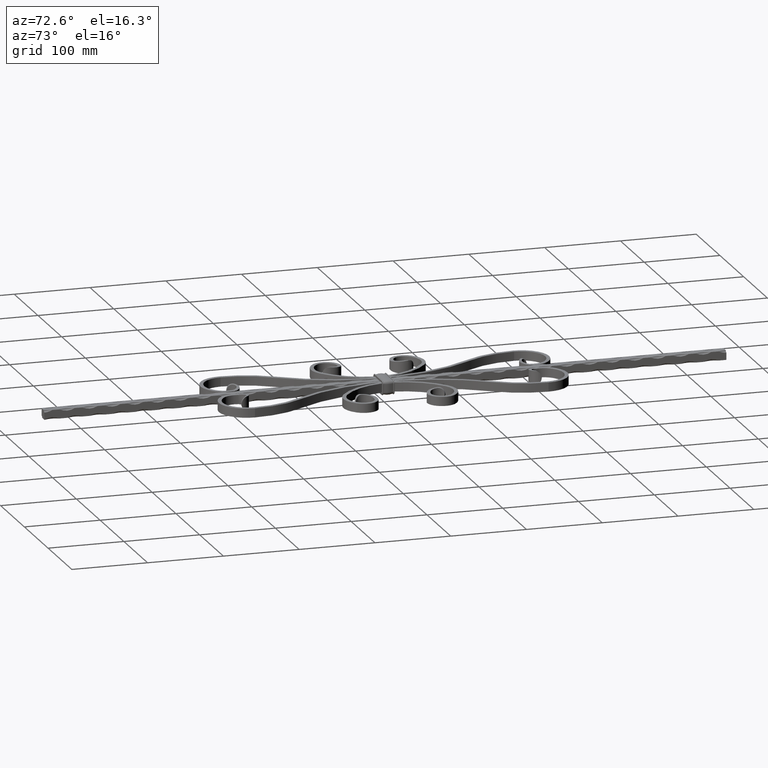
[diagram: clean part render]
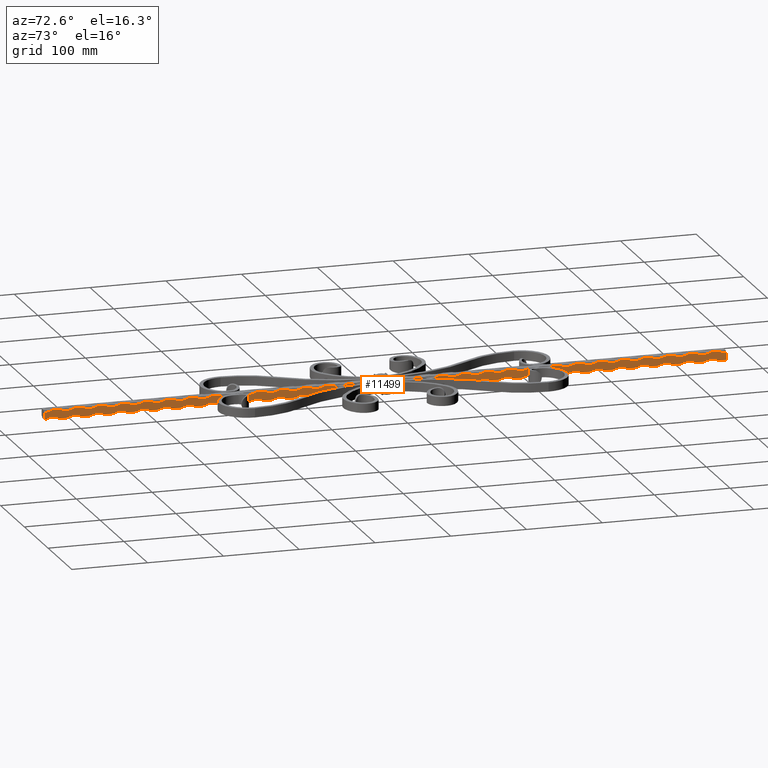
[diagram: same view with one face highlighted and labeled with its STEP entity id]
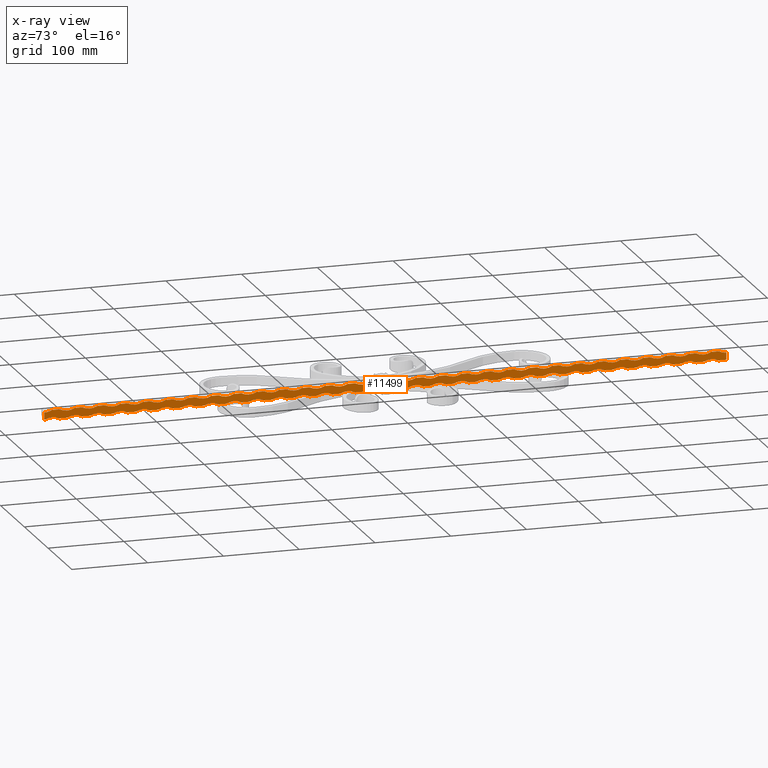
[diagram: x-ray of the same camera — body ghosted, the highlighted face saturated]
A machine part, auxiliary view. The second image highlights one B-rep face of the part: STEP entity #11499.
The next image is the same camera in x-ray: the body ghosted, the highlighted face saturated — about 0% of this face is hidden behind the body in this view.
In plain terms, the highlighted planar face has unit normal (-1, 0, 0).
Its self-contained STEP definition (entity closure, byte-faithful):
#24 = AXIS2_PLACEMENT_3D ( 'NONE', #21495, #22731, #4182 ) ;
#51 = ORIENTED_EDGE ( 'NONE', *, *, #7012, .T. ) ;
#102 = CARTESIAN_POINT ( 'NONE',  ( 5.999999999999995559, -379.9999999999999432, -24.75000000000004263 ) ) ;
#135 = LINE ( 'NONE', #3250, #12980 ) ;
#161 = AXIS2_PLACEMENT_3D ( 'NONE', #15361, #19087, #17381 ) ;
#162 = EDGE_CURVE ( 'NONE', #4503, #5151, #23480, .T. ) ;
#164 = CARTESIAN_POINT ( 'NONE',  ( 5.999999999999999112, 450.0000000000000000, -6.000000000000000000 ) ) ;
#170 = ORIENTED_EDGE ( 'NONE', *, *, #21278, .T. ) ;
#180 = ORIENTED_EDGE ( 'NONE', *, *, #2024, .F. ) ;
#207 = VERTEX_POINT ( 'NONE', #15921 ) ;
#241 = AXIS2_PLACEMENT_3D ( 'NONE', #2928, #23188, #4806 ) ;
#259 = DIRECTION ( 'NONE',  ( 1.632680918566404328E-16, 0.000000000000000000, 1.000000000000000000 ) ) ;
#289 = DIRECTION ( 'NONE',  ( -1.000000000000000000, 0.000000000000000000, 1.445602896647339410E-16 ) ) ;
#325 = VERTEX_POINT ( 'NONE', #4570 ) ;
#402 = CARTESIAN_POINT ( 'NONE',  ( 6.000000000000000888, 450.0000000000000000, 6.000000000000000000 ) ) ;
#469 = EDGE_CURVE ( 'NONE', #16709, #23260, #21701, .T. ) ;
#514 = ORIENTED_EDGE ( 'NONE', *, *, #4755, .T. ) ;
#560 = ORIENTED_EDGE ( 'NONE', *, *, #899, .T. ) ;
#573 = VECTOR ( 'NONE', #23234, 1000.000000000000000 ) ;
#590 = AXIS2_PLACEMENT_3D ( 'NONE', #20682, #2060, #259 ) ;
#591 = ORIENTED_EDGE ( 'NONE', *, *, #4701, .T. ) ;
#661 = CARTESIAN_POINT ( 'NONE',  ( 6.000000000000000888, 450.0000000000000000, 6.000000000000000000 ) ) ;
#695 = VERTEX_POINT ( 'NONE', #14687 ) ;
#704 = CARTESIAN_POINT ( 'NONE',  ( 5.999999999999999112, 450.0000000000000000, -6.000000000000000000 ) ) ;
#706 = LINE ( 'NONE', #704, #10647 ) ;
#734 = AXIS2_PLACEMENT_3D ( 'NONE', #7840, #6107, #13449 ) ;
#767 = VERTEX_POINT ( 'NONE', #14027 ) ;
#793 = EDGE_CURVE ( 'NONE', #14895, #16804, #20546, .T. ) ;
#829 = EDGE_CURVE ( 'NONE', #7722, #6692, #12139, .T. ) ;
#862 = CARTESIAN_POINT ( 'NONE',  ( 5.999999999999999112, 450.0000000000000000, -6.000000000000000000 ) ) ;
#878 = CIRCLE ( 'NONE', #14038, 21.25000000000004263 ) ;
#899 = EDGE_CURVE ( 'NONE', #20452, #6407, #20267, .T. ) ;
#907 = ORIENTED_EDGE ( 'NONE', *, *, #14958, .T. ) ;
#945 = CARTESIAN_POINT ( 'NONE',  ( 6.000000000000000888, -220.0000000000000284, 6.000000000000000000 ) ) ;
#983 = CARTESIAN_POINT ( 'NONE',  ( 6.000000000000001776, 280.0000000000000000, 6.000000000000000000 ) ) ;
#996 = CARTESIAN_POINT ( 'NONE',  ( 6.000000000000004441, -60.00000000000000000, 24.75000000000003553 ) ) ;
#1002 = DIRECTION ( 'NONE',  ( 1.632680918566404328E-16, 0.000000000000000000, 1.000000000000000000 ) ) ;
#1022 = VERTEX_POINT ( 'NONE', #22604 ) ;
#1026 = DIRECTION ( 'NONE',  ( 1.632680918566403342E-16, 0.000000000000000000, 1.000000000000000000 ) ) ;
#1032 = CARTESIAN_POINT ( 'NONE',  ( 5.999999999999999112, 450.0000000000000000, -6.000000000000000000 ) ) ;
#1033 = EDGE_CURVE ( 'NONE', #14849, #20452, #17905, .T. ) ;
#1088 = CARTESIAN_POINT ( 'NONE',  ( 6.000000000000001776, -350.0000000000000568, 6.000000000000000000 ) ) ;
#1099 = ORIENTED_EDGE ( 'NONE', *, *, #19437, .T. ) ;
#1128 = DIRECTION ( 'NONE',  ( -0.000000000000000000, -1.000000000000000000, -0.000000000000000000 ) ) ;
#1169 = CARTESIAN_POINT ( 'NONE',  ( 5.999999999999999112, 450.0000000000000000, -6.000000000000000000 ) ) ;
#1182 = VERTEX_POINT ( 'NONE', #1198 ) ;
#1198 = CARTESIAN_POINT ( 'NONE',  ( 6.000000000000001776, 400.0000000000000000, 6.000000000000000000 ) ) ;
#1211 = VECTOR ( 'NONE', #11659, 1000.000000000000000 ) ;
#1220 = EDGE_CURVE ( 'NONE', #21419, #1440, #4818, .T. ) ;
#1227 = CARTESIAN_POINT ( 'NONE',  ( 6.000000000000004441, 180.0000000000000000, 24.75000000000003553 ) ) ;
#1246 = CARTESIAN_POINT ( 'NONE',  ( 5.999999999999998224, 290.0000000000000568, -6.000000000000001776 ) ) ;
#1248 = DIRECTION ( 'NONE',  ( -0.000000000000000000, -1.000000000000000000, -0.000000000000000000 ) ) ;
#1250 = CARTESIAN_POINT ( 'NONE',  ( 6.000000000000004441, -360.0000000000000568, 24.75000000000003553 ) ) ;
#1272 = VECTOR ( 'NONE', #23388, 1000.000000000000000 ) ;
#1293 = CARTESIAN_POINT ( 'NONE',  ( 5.999999999999998224, 20.00000000000001776, -6.000000000000001776 ) ) ;
#1296 = EDGE_CURVE ( 'NONE', #24105, #15674, #21399, .T. ) ;
#1322 = LINE ( 'NONE', #16700, #5404 ) ;
#1358 = DIRECTION ( 'NONE',  ( 1.632680918566403342E-16, 0.000000000000000000, 1.000000000000000000 ) ) ;
#1366 = EDGE_CURVE ( 'NONE', #21537, #4895, #13855, .T. ) ;
#1378 = VERTEX_POINT ( 'NONE', #19402 ) ;
#1414 = ORIENTED_EDGE ( 'NONE', *, *, #22263, .T. ) ;
#1419 = EDGE_CURVE ( 'NONE', #6692, #10653, #8936, .T. ) ;
#1431 = ORIENTED_EDGE ( 'NONE', *, *, #1940, .T. ) ;
#1440 = VERTEX_POINT ( 'NONE', #15813 ) ;
#1478 = CARTESIAN_POINT ( 'NONE',  ( 5.999999999999999112, 450.0000000000000000, -6.000000000000000000 ) ) ;
#1522 = CIRCLE ( 'NONE', #4524, 21.25000000000004263 ) ;
#1537 = DIRECTION ( 'NONE',  ( -1.000000000000000000, 0.000000000000000000, 1.445602896647339410E-16 ) ) ;
#1543 = VECTOR ( 'NONE', #1128, 1000.000000000000000 ) ;
#1564 = ORIENTED_EDGE ( 'NONE', *, *, #12952, .T. ) ;
#1585 = CARTESIAN_POINT ( 'NONE',  ( 6.000000000000004441, 420.0000000000000000, 24.75000000000003553 ) ) ;
#1595 = VECTOR ( 'NONE', #1248, 1000.000000000000000 ) ;
#1599 = EDGE_CURVE ( 'NONE', #1022, #207, #11820, .T. ) ;
#1626 = VERTEX_POINT ( 'NONE', #14446 ) ;
#1662 = EDGE_CURVE ( 'NONE', #14699, #21419, #17014, .T. ) ;
#1669 = EDGE_CURVE ( 'NONE', #21461, #17027, #5957, .T. ) ;
#1695 = EDGE_CURVE ( 'NONE', #2835, #16420, #13264, .T. ) ;
#1737 = ORIENTED_EDGE ( 'NONE', *, *, #469, .T. ) ;
#1786 = AXIS2_PLACEMENT_3D ( 'NONE', #15271, #8051, #17133 ) ;
#1805 = DIRECTION ( 'NONE',  ( -1.000000000000000000, 0.000000000000000000, 1.445602896647339410E-16 ) ) ;
#1818 = CARTESIAN_POINT ( 'NONE',  ( 6.000000000000000888, -370.0000000000000568, 6.000000000000000000 ) ) ;
#1849 = DIRECTION ( 'NONE',  ( 1.632680918566404328E-16, 0.000000000000000000, 1.000000000000000000 ) ) ;
#1867 = VECTOR ( 'NONE', #22045, 1000.000000000000000 ) ;
#1873 = DIRECTION ( 'NONE',  ( 1.632680918566404328E-16, 0.000000000000000000, 1.000000000000000000 ) ) ;
#1893 = VECTOR ( 'NONE', #21671, 1000.000000000000000 ) ;
#1902 = DIRECTION ( 'NONE',  ( 1.632680918566403342E-16, 0.000000000000000000, 1.000000000000000000 ) ) ;
#1903 = DIRECTION ( 'NONE',  ( -1.000000000000000000, 0.000000000000000000, 1.445602896647339410E-16 ) ) ;
#1911 = DIRECTION ( 'NONE',  ( 1.632680918566404328E-16, 0.000000000000000000, 1.000000000000000000 ) ) ;
#1923 = CARTESIAN_POINT ( 'NONE',  ( 6.000000000000001776, -49.99999999999998579, 6.000000000000000000 ) ) ;
#1934 = DIRECTION ( 'NONE',  ( -0.000000000000000000, -1.000000000000000000, -0.000000000000000000 ) ) ;
#1940 = EDGE_CURVE ( 'NONE', #12542, #7369, #22527, .T. ) ;
#1949 = ORIENTED_EDGE ( 'NONE', *, *, #17802, .T. ) ;
#1982 = VERTEX_POINT ( 'NONE', #17578 ) ;
#2000 = VERTEX_POINT ( 'NONE', #8420 ) ;
#2019 = DIRECTION ( 'NONE',  ( 1.632680918566404328E-16, 0.000000000000000000, 1.000000000000000000 ) ) ;
#2024 = EDGE_CURVE ( 'NONE', #23386, #15367, #7423, .T. ) ;
#2060 = DIRECTION ( 'NONE',  ( -1.000000000000000000, 0.000000000000000000, 1.445602896647339410E-16 ) ) ;
#2074 = CARTESIAN_POINT ( 'NONE',  ( 5.999999999999998224, -3.469446951953614189E-15, -6.000000000000000888 ) ) ;
#2080 = CARTESIAN_POINT ( 'NONE',  ( 5.999999999999998224, 110.0000000000000426, -6.000000000000001776 ) ) ;
#2145 = CARTESIAN_POINT ( 'NONE',  ( 5.999999999999998224, -60.00000000000000000, -6.000000000000000888 ) ) ;
#2164 = AXIS2_PLACEMENT_3D ( 'NONE', #3498, #1537, #14574 ) ;
#2197 = AXIS2_PLACEMENT_3D ( 'NONE', #13249, #19158, #16960 ) ;
#2199 = ORIENTED_EDGE ( 'NONE', *, *, #23010, .T. ) ;
#2320 = CARTESIAN_POINT ( 'NONE',  ( 6.000000000000001776, -410.0000000000000000, 6.000000000000000000 ) ) ;
#2417 = DIRECTION ( 'NONE',  ( 1.632680918566403342E-16, 0.000000000000000000, 1.000000000000000000 ) ) ;
#2453 = CIRCLE ( 'NONE', #6792, 21.25000000000004263 ) ;
#2465 = ORIENTED_EDGE ( 'NONE', *, *, #23533, .T. ) ;
#2469 = VERTEX_POINT ( 'NONE', #5269 ) ;
#2507 = ORIENTED_EDGE ( 'NONE', *, *, #7151, .T. ) ;
#2585 = VERTEX_POINT ( 'NONE', #2074 ) ;
#2587 = VECTOR ( 'NONE', #10707, 1000.000000000000000 ) ;
#2590 = EDGE_CURVE ( 'NONE', #2745, #1626, #14950, .T. ) ;
#2596 = DIRECTION ( 'NONE',  ( -1.000000000000000000, 0.000000000000000000, 1.445602896647339410E-16 ) ) ;
#2613 = ORIENTED_EDGE ( 'NONE', *, *, #5781, .T. ) ;
#2615 = VECTOR ( 'NONE', #5297, 1000.000000000000000 ) ;
#2620 = EDGE_CURVE ( 'NONE', #7872, #17485, #7133, .T. ) ;
#2627 = DIRECTION ( 'NONE',  ( -1.000000000000000000, 0.000000000000000000, 1.445602896647339410E-16 ) ) ;
#2690 = EDGE_CURVE ( 'NONE', #24105, #15051, #15825, .T. ) ;
#2693 = DIRECTION ( 'NONE',  ( -0.000000000000000000, -1.000000000000000000, -0.000000000000000000 ) ) ;
#2741 = LINE ( 'NONE', #5798, #17011 ) ;
#2745 = VERTEX_POINT ( 'NONE', #10219 ) ;
#2773 = VECTOR ( 'NONE', #4439, 1000.000000000000000 ) ;
#2819 = DIRECTION ( 'NONE',  ( -0.000000000000000000, -1.000000000000000000, -0.000000000000000000 ) ) ;
#2835 = VERTEX_POINT ( 'NONE', #18651 ) ;
#2873 = AXIS2_PLACEMENT_3D ( 'NONE', #7583, #22437, #2019 ) ;
#2922 = CARTESIAN_POINT ( 'NONE',  ( 5.999999999999999112, 450.0000000000000000, -6.000000000000000000 ) ) ;
#2928 = CARTESIAN_POINT ( 'NONE',  ( 5.999999999999995559, -169.9999999999999716, -24.75000000000004263 ) ) ;
#2935 = EDGE_CURVE ( 'NONE', #3966, #4336, #12329, .T. ) ;
#2954 = DIRECTION ( 'NONE',  ( 1.632680918566403342E-16, 0.000000000000000000, 1.000000000000000000 ) ) ;
#2981 = DIRECTION ( 'NONE',  ( -1.000000000000000000, 0.000000000000000000, 1.445602896647339410E-16 ) ) ;
#2991 = CARTESIAN_POINT ( 'NONE',  ( 5.999999999999995559, -229.9999999999999147, -24.75000000000004263 ) ) ;
#3015 = ORIENTED_EDGE ( 'NONE', *, *, #13484, .T. ) ;
#3036 = CARTESIAN_POINT ( 'NONE',  ( 5.999999999999995559, 280.0000000000000000, -24.75000000000004263 ) ) ;
#3044 = EDGE_CURVE ( 'NONE', #12542, #6411, #6798, .T. ) ;
#3058 = AXIS2_PLACEMENT_3D ( 'NONE', #102, #18665, #1902 ) ;
#3063 = VERTEX_POINT ( 'NONE', #21144 ) ;
#3073 = VECTOR ( 'NONE', #6611, 1000.000000000000000 ) ;
#3085 = CARTESIAN_POINT ( 'NONE',  ( 5.999999999999998224, 140.0000000000000000, -6.000000000000001776 ) ) ;
#3090 = AXIS2_PLACEMENT_3D ( 'NONE', #13468, #6370, #17183 ) ;
#3093 = DIRECTION ( 'NONE',  ( -0.000000000000000000, -1.000000000000000000, -0.000000000000000000 ) ) ;
#3102 = ORIENTED_EDGE ( 'NONE', *, *, #5702, .F. ) ;
#3122 = VERTEX_POINT ( 'NONE', #3085 ) ;
#3133 = CARTESIAN_POINT ( 'NONE',  ( 5.999999999999998224, 90.00000000000002842, -6.000000000000000888 ) ) ;
#3143 = DIRECTION ( 'NONE',  ( 1.632680918566404328E-16, 0.000000000000000000, 1.000000000000000000 ) ) ;
#3248 = CARTESIAN_POINT ( 'NONE',  ( 6.000000000000000888, 19.99999999999996092, 6.000000000000000000 ) ) ;
#3250 = CARTESIAN_POINT ( 'NONE',  ( 5.999999999999999112, 450.0000000000000000, -6.000000000000000000 ) ) ;
#3279 = CIRCLE ( 'NONE', #19746, 21.25000000000003197 ) ;
#3280 = DIRECTION ( 'NONE',  ( -1.000000000000000000, 0.000000000000000000, 1.445602896647339410E-16 ) ) ;
#3293 = CARTESIAN_POINT ( 'NONE',  ( 6.000000000000000888, 450.0000000000000000, 6.000000000000000000 ) ) ;
#3338 = DIRECTION ( 'NONE',  ( 1.632680918566403342E-16, 0.000000000000000000, 1.000000000000000000 ) ) ;
#3353 = CARTESIAN_POINT ( 'NONE',  ( 5.999999999999998224, 180.0000000000000000, -6.000000000000000888 ) ) ;
#3385 = AXIS2_PLACEMENT_3D ( 'NONE', #12942, #3816, #22511 ) ;
#3388 = DIRECTION ( 'NONE',  ( -1.000000000000000000, 0.000000000000000000, 1.445602896647339410E-16 ) ) ;
#3406 = CARTESIAN_POINT ( 'NONE',  ( 6.000000000000000888, 199.9999999999999716, 6.000000000000000000 ) ) ;
#3408 = EDGE_CURVE ( 'NONE', #20935, #10915, #20734, .T. ) ;
#3417 = DIRECTION ( 'NONE',  ( 1.632680918566404328E-16, 0.000000000000000000, 1.000000000000000000 ) ) ;
#3461 = CIRCLE ( 'NONE', #12414, 21.25000000000003197 ) ;
#3486 = LINE ( 'NONE', #2922, #11377 ) ;
#3498 = CARTESIAN_POINT ( 'NONE',  ( 5.999999999999999112, 450.0000000000000000, -6.000000000000000000 ) ) ;
#3513 = CIRCLE ( 'NONE', #20270, 21.25000000000003197 ) ;
#3597 = DIRECTION ( 'NONE',  ( 1.632680918566403342E-16, 0.000000000000000000, 1.000000000000000000 ) ) ;
#3609 = VERTEX_POINT ( 'NONE', #9326 ) ;
#3610 = DIRECTION ( 'NONE',  ( -1.000000000000000000, 0.000000000000000000, 1.445602896647339410E-16 ) ) ;
#3634 = VERTEX_POINT ( 'NONE', #1818 ) ;
#3646 = CIRCLE ( 'NONE', #9429, 21.25000000000004263 ) ;
#3658 = ORIENTED_EDGE ( 'NONE', *, *, #18837, .T. ) ;
#3670 = VERTEX_POINT ( 'NONE', #12992 ) ;
#3674 = AXIS2_PLACEMENT_3D ( 'NONE', #13699, #6368, #10041 ) ;
#3704 = EDGE_LOOP ( 'NONE', ( #23214, #15871, #21514, #6359, #4198, #15056, #10161, #5657, #514, #12302, #10555, #6929, #1737, #20075, #6285, #14777, #4147, #8368, #9018, #5428, #17150, #13296, #8415, #51, #13475, #16547, #6843, #7809, #22596, #9613, #6283, #13969, #170, #5537, #13904, #16112, #8886, #16823, #18943, #15782, #22390, #15183, #12717, #5180, #7893, #11096, #10501, #180, #17972, #23891, #1431, #12188, #14154, #23441, #15557, #8689, #4215, #16486, #7483, #8500, #18260, #5772, #1099, #15876, #3015, #6362, #2465, #23317, #10357, #20862, #1414, #11223, #9560, #3102, #16730, #9340, #591, #10787, #2507, #12740, #18753, #19432, #907, #4919, #15586, #22992, #1949, #14093, #14383, #7554, #7188, #21755, #7039, #9038, #20782, #14066, #8404, #21817, #22598, #560, #3750, #3658, #21727, #17315, #9600, #7167, #18927, #1564, #2613, #13007, #16866, #20460, #20058, #17374, #2199, #8171, #11577, #12166, #6841, #8299, #4278, #13287, #13244 ) ) ;
#3735 = EDGE_CURVE ( 'NONE', #7435, #11257, #21021, .T. ) ;
#3750 = ORIENTED_EDGE ( 'NONE', *, *, #4475, .T. ) ;
#3764 = VECTOR ( 'NONE', #8041, 1000.000000000000000 ) ;
#3797 = LINE ( 'NONE', #12878, #2615 ) ;
#3816 = DIRECTION ( 'NONE',  ( -1.000000000000000000, 0.000000000000000000, 1.445602896647339410E-16 ) ) ;
#3825 = LINE ( 'NONE', #11526, #16046 ) ;
#3842 = VECTOR ( 'NONE', #9303, 1000.000000000000000 ) ;
#3964 = VECTOR ( 'NONE', #17397, 1000.000000000000000 ) ;
#3965 = CARTESIAN_POINT ( 'NONE',  ( 6.000000000000003553, 449.9999999999999432, 24.75000000000003553 ) ) ;
#3966 = VERTEX_POINT ( 'NONE', #12741 ) ;
#4060 = EDGE_CURVE ( 'NONE', #19499, #4934, #21589, .T. ) ;
#4106 = CARTESIAN_POINT ( 'NONE',  ( 6.000000000000000888, 450.0000000000000000, 6.000000000000000000 ) ) ;
#4114 = LINE ( 'NONE', #23779, #16332 ) ;
#4147 = ORIENTED_EDGE ( 'NONE', *, *, #162, .T. ) ;
#4154 = EDGE_CURVE ( 'NONE', #325, #15051, #7077, .T. ) ;
#4182 = DIRECTION ( 'NONE',  ( 1.632680918566403342E-16, 0.000000000000000000, 1.000000000000000000 ) ) ;
#4195 = DIRECTION ( 'NONE',  ( 1.632680918566404328E-16, 0.000000000000000000, 1.000000000000000000 ) ) ;
#4198 = ORIENTED_EDGE ( 'NONE', *, *, #6046, .T. ) ;
#4206 = EDGE_CURVE ( 'NONE', #16804, #11191, #16646, .T. ) ;
#4215 = ORIENTED_EDGE ( 'NONE', *, *, #1296, .T. ) ;
#4236 = EDGE_CURVE ( 'NONE', #14201, #7369, #11727, .T. ) ;
#4253 = VECTOR ( 'NONE', #4293, 1000.000000000000000 ) ;
#4278 = ORIENTED_EDGE ( 'NONE', *, *, #6854, .T. ) ;
#4293 = DIRECTION ( 'NONE',  ( -0.000000000000000000, -1.000000000000000000, -0.000000000000000000 ) ) ;
#4336 = VERTEX_POINT ( 'NONE', #945 ) ;
#4388 = VECTOR ( 'NONE', #19469, 1000.000000000000000 ) ;
#4391 = CIRCLE ( 'NONE', #17845, 21.25000000000004263 ) ;
#4398 = CARTESIAN_POINT ( 'NONE',  ( 5.999999999999998224, -149.9999999999999716, -6.000000000000000888 ) ) ;
#4419 = EDGE_CURVE ( 'NONE', #10012, #1182, #5869, .T. ) ;
#4439 = DIRECTION ( 'NONE',  ( -0.000000000000000000, -1.000000000000000000, -0.000000000000000000 ) ) ;
#4475 = EDGE_CURVE ( 'NONE', #6407, #17076, #6753, .T. ) ;
#4503 = VERTEX_POINT ( 'NONE', #10666 ) ;
#4524 = AXIS2_PLACEMENT_3D ( 'NONE', #9327, #5739, #14925 ) ;
#4530 = AXIS2_PLACEMENT_3D ( 'NONE', #22580, #289, #15189 ) ;
#4532 = CARTESIAN_POINT ( 'NONE',  ( 6.000000000000000888, -70.00000000000000000, 6.000000000000000000 ) ) ;
#4535 = LINE ( 'NONE', #19948, #23145 ) ;
#4546 = LINE ( 'NONE', #11959, #4253 ) ;
#4564 = CARTESIAN_POINT ( 'NONE',  ( 6.000000000000004441, -420.0000000000000000, 24.75000000000003553 ) ) ;
#4570 = CARTESIAN_POINT ( 'NONE',  ( 5.999999999999998224, -120.0000000000000568, -6.000000000000000888 ) ) ;
#4591 = CARTESIAN_POINT ( 'NONE',  ( 6.000000000000000888, 450.0000000000000000, 6.000000000000000000 ) ) ;
#4672 = LINE ( 'NONE', #22724, #5850 ) ;
#4701 = EDGE_CURVE ( 'NONE', #19499, #767, #14021, .T. ) ;
#4752 = CARTESIAN_POINT ( 'NONE',  ( 6.000000000000000888, 450.0000000000000000, 3.500000000000001332 ) ) ;
#4755 = EDGE_CURVE ( 'NONE', #14769, #2000, #10845, .T. ) ;
#4787 = DIRECTION ( 'NONE',  ( -0.000000000000000000, -1.000000000000000000, -0.000000000000000000 ) ) ;
#4789 = CARTESIAN_POINT ( 'NONE',  ( 6.000000000000000888, 450.0000000000000000, 6.000000000000000000 ) ) ;
#4806 = DIRECTION ( 'NONE',  ( 1.632680918566403342E-16, 0.000000000000000000, 1.000000000000000000 ) ) ;
#4817 = CARTESIAN_POINT ( 'NONE',  ( 5.999999999999998224, -129.9999999999999432, -6.000000000000001776 ) ) ;
#4818 = CIRCLE ( 'NONE', #3674, 21.25000000000003197 ) ;
#4864 = CARTESIAN_POINT ( 'NONE',  ( 6.000000000000004441, -239.9999999999999432, 24.75000000000003553 ) ) ;
#4872 = EDGE_CURVE ( 'NONE', #11077, #9059, #7923, .T. ) ;
#4895 = VERTEX_POINT ( 'NONE', #18399 ) ;
#4919 = ORIENTED_EDGE ( 'NONE', *, *, #16357, .F. ) ;
#4934 = VERTEX_POINT ( 'NONE', #11029 ) ;
#4986 = CARTESIAN_POINT ( 'NONE',  ( 5.999999999999998224, 120.0000000000000000, -6.000000000000000888 ) ) ;
#5017 = CARTESIAN_POINT ( 'NONE',  ( 6.000000000000004441, -450.0000000000000000, 24.75000000000003553 ) ) ;
#5018 = DIRECTION ( 'NONE',  ( -0.000000000000000000, -1.000000000000000000, -0.000000000000000000 ) ) ;
#5035 = CARTESIAN_POINT ( 'NONE',  ( 6.000000000000004441, 0.000000000000000000, 24.75000000000003553 ) ) ;
#5051 = LINE ( 'NONE', #17464, #13785 ) ;
#5054 = EDGE_CURVE ( 'NONE', #16465, #13791, #15170, .T. ) ;
#5133 = VERTEX_POINT ( 'NONE', #10587 ) ;
#5138 = EDGE_CURVE ( 'NONE', #14478, #15367, #5852, .T. ) ;
#5142 = AXIS2_PLACEMENT_3D ( 'NONE', #2991, #13996, #16018 ) ;
#5151 = VERTEX_POINT ( 'NONE', #8488 ) ;
#5157 = CARTESIAN_POINT ( 'NONE',  ( 5.999999999999998224, -389.9999999999999432, -6.000000000000000888 ) ) ;
#5180 = ORIENTED_EDGE ( 'NONE', *, *, #23428, .F. ) ;
#5204 = CIRCLE ( 'NONE', #14653, 21.25000000000004263 ) ;
#5219 = DIRECTION ( 'NONE',  ( -1.000000000000000000, 0.000000000000000000, 1.445602896647339410E-16 ) ) ;
#5229 = CARTESIAN_POINT ( 'NONE',  ( 6.000000000000001776, -80.00000000000001421, 6.000000000000000000 ) ) ;
#5247 = CARTESIAN_POINT ( 'NONE',  ( 5.999999999999998224, 29.99999999999996803, -6.000000000000000888 ) ) ;
#5249 = CIRCLE ( 'NONE', #2197, 21.25000000000004263 ) ;
#5262 = DIRECTION ( 'NONE',  ( -0.000000000000000000, -1.000000000000000000, -0.000000000000000000 ) ) ;
#5269 = CARTESIAN_POINT ( 'NONE',  ( 6.000000000000000888, -340.0000000000000000, 6.000000000000000000 ) ) ;
#5290 = DIRECTION ( 'NONE',  ( -1.000000000000000000, 0.000000000000000000, 1.445602896647339410E-16 ) ) ;
#5297 = DIRECTION ( 'NONE',  ( -0.000000000000000000, -1.000000000000000000, -0.000000000000000000 ) ) ;
#5338 = DIRECTION ( 'NONE',  ( -0.000000000000000000, -1.000000000000000000, -0.000000000000000000 ) ) ;
#5360 = VECTOR ( 'NONE', #7954, 1000.000000000000000 ) ;
#5404 = VECTOR ( 'NONE', #5661, 1000.000000000000000 ) ;
#5425 = EDGE_CURVE ( 'NONE', #11077, #1378, #16879, .T. ) ;
#5428 = ORIENTED_EDGE ( 'NONE', *, *, #1695, .T. ) ;
#5448 = VERTEX_POINT ( 'NONE', #16815 ) ;
#5518 = LINE ( 'NONE', #15867, #9299 ) ;
#5537 = ORIENTED_EDGE ( 'NONE', *, *, #13442, .F. ) ;
#5552 = VERTEX_POINT ( 'NONE', #19091 ) ;
#5590 = DIRECTION ( 'NONE',  ( 1.632680918566404328E-16, 0.000000000000000000, 1.000000000000000000 ) ) ;
#5600 = EDGE_CURVE ( 'NONE', #8924, #4934, #11965, .T. ) ;
#5620 = CARTESIAN_POINT ( 'NONE',  ( 6.000000000000000888, 450.0000000000000000, 6.000000000000000000 ) ) ;
#5625 = VECTOR ( 'NONE', #20685, 1000.000000000000000 ) ;
#5657 = ORIENTED_EDGE ( 'NONE', *, *, #21346, .T. ) ;
#5661 = DIRECTION ( 'NONE',  ( -1.445602896647339163E-16, -0.000000000000000000, -1.000000000000000000 ) ) ;
#5685 = CARTESIAN_POINT ( 'NONE',  ( 6.000000000000000888, 450.0000000000000000, 6.000000000000000000 ) ) ;
#5702 = EDGE_CURVE ( 'NONE', #8924, #20679, #13127, .T. ) ;
#5739 = DIRECTION ( 'NONE',  ( -1.000000000000000000, 0.000000000000000000, 1.445602896647339410E-16 ) ) ;
#5743 = DIRECTION ( 'NONE',  ( -1.000000000000000000, 0.000000000000000000, 1.445602896647339410E-16 ) ) ;
#5755 = DIRECTION ( 'NONE',  ( -0.000000000000000000, -1.000000000000000000, -0.000000000000000000 ) ) ;
#5772 = ORIENTED_EDGE ( 'NONE', *, *, #12778, .F. ) ;
#5781 = EDGE_CURVE ( 'NONE', #16327, #7722, #20083, .T. ) ;
#5796 = LINE ( 'NONE', #4591, #3764 ) ;
#5798 = CARTESIAN_POINT ( 'NONE',  ( 5.999999999999999112, -450.0000000000000000, -6.000000000000000000 ) ) ;
#5850 = VECTOR ( 'NONE', #11287, 1000.000000000000000 ) ;
#5852 = CIRCLE ( 'NONE', #5142, 21.25000000000004263 ) ;
#5866 = CIRCLE ( 'NONE', #13897, 21.25000000000003197 ) ;
#5869 = LINE ( 'NONE', #11979, #20138 ) ;
#5881 = AXIS2_PLACEMENT_3D ( 'NONE', #10118, #21295, #17499 ) ;
#5882 = CARTESIAN_POINT ( 'NONE',  ( 5.999999999999998224, -330.0000000000000000, -6.000000000000000888 ) ) ;
#5892 = CARTESIAN_POINT ( 'NONE',  ( 5.999999999999998224, -100.0000000000000284, -6.000000000000001776 ) ) ;
#5953 = CIRCLE ( 'NONE', #11788, 21.25000000000004263 ) ;
#5957 = LINE ( 'NONE', #1169, #1595 ) ;
#5988 = DIRECTION ( 'NONE',  ( 1.632680918566404328E-16, 0.000000000000000000, 1.000000000000000000 ) ) ;
#6002 = LINE ( 'NONE', #18185, #20263 ) ;
#6005 = CARTESIAN_POINT ( 'NONE',  ( 6.000000000000004441, 120.0000000000000000, 24.75000000000003553 ) ) ;
#6015 = EDGE_CURVE ( 'NONE', #14201, #13911, #22446, .T. ) ;
#6046 = EDGE_CURVE ( 'NONE', #17683, #14699, #9088, .T. ) ;
#6073 = CARTESIAN_POINT ( 'NONE',  ( 6.000000000000001776, -19.99999999999996092, 6.000000000000000000 ) ) ;
#6089 = CARTESIAN_POINT ( 'NONE',  ( 5.999999999999998224, 420.0000000000000000, -6.000000000000000888 ) ) ;
#6107 = DIRECTION ( 'NONE',  ( -1.000000000000000000, 0.000000000000000000, 1.445602896647339410E-16 ) ) ;
#6174 = AXIS2_PLACEMENT_3D ( 'NONE', #1250, #6988, #18014 ) ;
#6194 = EDGE_CURVE ( 'NONE', #2000, #23030, #4114, .T. ) ;
#6250 = CIRCLE ( 'NONE', #13416, 21.25000000000004263 ) ;
#6274 = VECTOR ( 'NONE', #23623, 1000.000000000000000 ) ;
#6283 = ORIENTED_EDGE ( 'NONE', *, *, #14799, .T. ) ;
#6285 = ORIENTED_EDGE ( 'NONE', *, *, #2935, .T. ) ;
#6288 = DIRECTION ( 'NONE',  ( -0.000000000000000000, -1.000000000000000000, -0.000000000000000000 ) ) ;
#6304 = DIRECTION ( 'NONE',  ( -0.000000000000000000, -1.000000000000000000, -0.000000000000000000 ) ) ;
#6311 = EDGE_CURVE ( 'NONE', #21909, #20175, #16905, .T. ) ;
#6359 = ORIENTED_EDGE ( 'NONE', *, *, #15034, .T. ) ;
#6362 = ORIENTED_EDGE ( 'NONE', *, *, #1599, .F. ) ;
#6364 = CARTESIAN_POINT ( 'NONE',  ( 5.999999999999999112, 450.0000000000000000, -6.000000000000000000 ) ) ;
#6368 = DIRECTION ( 'NONE',  ( -1.000000000000000000, 0.000000000000000000, 1.445602896647339410E-16 ) ) ;
#6370 = DIRECTION ( 'NONE',  ( -1.000000000000000000, 0.000000000000000000, 1.445602896647339410E-16 ) ) ;
#6407 = VERTEX_POINT ( 'NONE', #9708 ) ;
#6411 = VERTEX_POINT ( 'NONE', #9635 ) ;
#6451 = DIRECTION ( 'NONE',  ( 1.632680918566404328E-16, 0.000000000000000000, 1.000000000000000000 ) ) ;
#6464 = CARTESIAN_POINT ( 'NONE',  ( 6.000000000000000888, 450.0000000000000000, 6.000000000000000000 ) ) ;
#6468 = DIRECTION ( 'NONE',  ( -0.000000000000000000, -1.000000000000000000, -0.000000000000000000 ) ) ;
#6494 = CARTESIAN_POINT ( 'NONE',  ( 6.000000000000001776, -110.0000000000000426, 6.000000000000000000 ) ) ;
#6523 = AXIS2_PLACEMENT_3D ( 'NONE', #19318, #11939, #4195 ) ;
#6540 = CARTESIAN_POINT ( 'NONE',  ( 5.999999999999999112, 450.0000000000000000, -6.000000000000000000 ) ) ;
#6597 = EDGE_CURVE ( 'NONE', #20224, #10125, #16570, .T. ) ;
#6611 = DIRECTION ( 'NONE',  ( -0.000000000000000000, -1.000000000000000000, -0.000000000000000000 ) ) ;
#6634 = CIRCLE ( 'NONE', #4530, 21.25000000000004263 ) ;
#6692 = VERTEX_POINT ( 'NONE', #3406 ) ;
#6729 = DIRECTION ( 'NONE',  ( 1.632680918566403342E-16, 0.000000000000000000, 1.000000000000000000 ) ) ;
#6745 = DIRECTION ( 'NONE',  ( -0.000000000000000000, -1.000000000000000000, -0.000000000000000000 ) ) ;
#6753 = LINE ( 'NONE', #4789, #11130 ) ;
#6759 = CARTESIAN_POINT ( 'NONE',  ( 5.999999999999995559, -19.99999999999996447, -24.75000000000004263 ) ) ;
#6768 = PLANE ( 'NONE',  #2164 ) ;
#6792 = AXIS2_PLACEMENT_3D ( 'NONE', #22821, #7890, #11717 ) ;
#6798 = LINE ( 'NONE', #9787, #16664 ) ;
#6809 = CARTESIAN_POINT ( 'NONE',  ( 6.000000000000000888, 450.0000000000000000, 6.000000000000000000 ) ) ;
#6841 = ORIENTED_EDGE ( 'NONE', *, *, #10738, .T. ) ;
#6843 = ORIENTED_EDGE ( 'NONE', *, *, #15358, .T. ) ;
#6854 = EDGE_CURVE ( 'NONE', #13791, #22525, #23267, .T. ) ;
#6858 = CARTESIAN_POINT ( 'NONE',  ( 6.000000000000000888, 450.0000000000000000, 6.000000000000000000 ) ) ;
#6882 = CARTESIAN_POINT ( 'NONE',  ( 5.999999999999998224, 300.0000000000000000, -6.000000000000000888 ) ) ;
#6904 = EDGE_CURVE ( 'NONE', #7970, #22333, #3486, .T. ) ;
#6929 = ORIENTED_EDGE ( 'NONE', *, *, #23353, .T. ) ;
#6963 = CARTESIAN_POINT ( 'NONE',  ( 6.000000000000000888, 410.0000000000000000, 6.000000000000000000 ) ) ;
#6988 = DIRECTION ( 'NONE',  ( -1.000000000000000000, 0.000000000000000000, 1.445602896647339410E-16 ) ) ;
#7012 = EDGE_CURVE ( 'NONE', #2469, #17904, #3797, .T. ) ;
#7023 = CIRCLE ( 'NONE', #7224, 21.25000000000003197 ) ;
#7039 = ORIENTED_EDGE ( 'NONE', *, *, #9728, .F. ) ;
#7050 = DIRECTION ( 'NONE',  ( -0.000000000000000000, -1.000000000000000000, -0.000000000000000000 ) ) ;
#7059 = VECTOR ( 'NONE', #14990, 1000.000000000000000 ) ;
#7063 = AXIS2_PLACEMENT_3D ( 'NONE', #8711, #17714, #1026 ) ;
#7077 = CIRCLE ( 'NONE', #734, 21.25000000000004263 ) ;
#7080 = VECTOR ( 'NONE', #23987, 1000.000000000000000 ) ;
#7094 = VECTOR ( 'NONE', #6304, 1000.000000000000000 ) ;
#7116 = EDGE_CURVE ( 'NONE', #23610, #14558, #22204, .T. ) ;
#7133 = LINE ( 'NONE', #15657, #5360 ) ;
#7151 = EDGE_CURVE ( 'NONE', #20527, #18507, #4391, .T. ) ;
#7156 = LINE ( 'NONE', #15165, #22548 ) ;
#7167 = ORIENTED_EDGE ( 'NONE', *, *, #22732, .T. ) ;
#7170 = DIRECTION ( 'NONE',  ( -1.000000000000000000, 0.000000000000000000, 1.445602896647339410E-16 ) ) ;
#7188 = ORIENTED_EDGE ( 'NONE', *, *, #15475, .T. ) ;
#7213 = EDGE_CURVE ( 'NONE', #11325, #23610, #14282, .T. ) ;
#7224 = AXIS2_PLACEMENT_3D ( 'NONE', #12895, #11018, #1873 ) ;
#7242 = CARTESIAN_POINT ( 'NONE',  ( 6.000000000000001776, -320.0000000000000000, 6.000000000000000000 ) ) ;
#7273 = AXIS2_PLACEMENT_3D ( 'NONE', #20292, #11050, #24038 ) ;
#7329 = EDGE_CURVE ( 'NONE', #10516, #18507, #23522, .T. ) ;
#7343 = CARTESIAN_POINT ( 'NONE',  ( 6.000000000000004441, 329.9999999999999432, 24.75000000000003553 ) ) ;
#7369 = VERTEX_POINT ( 'NONE', #21854 ) ;
#7386 = DIRECTION ( 'NONE',  ( -1.000000000000000000, 0.000000000000000000, 1.445602896647339410E-16 ) ) ;
#7404 = VECTOR ( 'NONE', #5755, 1000.000000000000000 ) ;
#7410 = CARTESIAN_POINT ( 'NONE',  ( 5.999999999999999112, -450.0000000000000000, -6.000000000000000000 ) ) ;
#7423 = LINE ( 'NONE', #8903, #1867 ) ;
#7435 = VERTEX_POINT ( 'NONE', #10487 ) ;
#7483 = ORIENTED_EDGE ( 'NONE', *, *, #17095, .T. ) ;
#7505 = VERTEX_POINT ( 'NONE', #9185 ) ;
#7529 = CARTESIAN_POINT ( 'NONE',  ( 5.999999999999995559, -290.0000000000000000, -24.75000000000004263 ) ) ;
#7540 = AXIS2_PLACEMENT_3D ( 'NONE', #18402, #20279, #21831 ) ;
#7554 = ORIENTED_EDGE ( 'NONE', *, *, #17204, .F. ) ;
#7583 = CARTESIAN_POINT ( 'NONE',  ( 6.000000000000004441, 210.0000000000000000, 24.75000000000003553 ) ) ;
#7600 = VECTOR ( 'NONE', #15119, 1000.000000000000000 ) ;
#7611 = EDGE_CURVE ( 'NONE', #14558, #14531, #3461, .T. ) ;
#7626 = CIRCLE ( 'NONE', #16566, 21.25000000000004263 ) ;
#7721 = CARTESIAN_POINT ( 'NONE',  ( 6.000000000000001776, -169.9999999999999716, 6.000000000000000000 ) ) ;
#7722 = VERTEX_POINT ( 'NONE', #13779 ) ;
#7738 = CARTESIAN_POINT ( 'NONE',  ( 5.999999999999999112, 450.0000000000000000, -6.000000000000000000 ) ) ;
#7809 = ORIENTED_EDGE ( 'NONE', *, *, #3408, .T. ) ;
#7840 = CARTESIAN_POINT ( 'NONE',  ( 5.999999999999995559, -110.0000000000000426, -24.75000000000004263 ) ) ;
#7872 = VERTEX_POINT ( 'NONE', #5247 ) ;
#7890 = DIRECTION ( 'NONE',  ( -1.000000000000000000, 0.000000000000000000, 1.445602896647339410E-16 ) ) ;
#7893 = ORIENTED_EDGE ( 'NONE', *, *, #11480, .T. ) ;
#7923 = CIRCLE ( 'NONE', #13421, 21.25000000000004263 ) ;
#7954 = DIRECTION ( 'NONE',  ( -0.000000000000000000, -1.000000000000000000, -0.000000000000000000 ) ) ;
#7970 = VERTEX_POINT ( 'NONE', #5882 ) ;
#7973 = CIRCLE ( 'NONE', #23153, 21.25000000000004263 ) ;
#8041 = DIRECTION ( 'NONE',  ( -0.000000000000000000, -1.000000000000000000, -0.000000000000000000 ) ) ;
#8051 = DIRECTION ( 'NONE',  ( -1.000000000000000000, 0.000000000000000000, 1.445602896647339410E-16 ) ) ;
#8056 = CARTESIAN_POINT ( 'NONE',  ( 6.000000000000000000, 439.9999999999999432, 6.000000000000000000 ) ) ;
#8171 = ORIENTED_EDGE ( 'NONE', *, *, #7213, .T. ) ;
#8210 = VECTOR ( 'NONE', #8859, 1000.000000000000000 ) ;
#8299 = ORIENTED_EDGE ( 'NONE', *, *, #5054, .T. ) ;
#8368 = ORIENTED_EDGE ( 'NONE', *, *, #19896, .T. ) ;
#8369 = CARTESIAN_POINT ( 'NONE',  ( 6.000000000000004441, 300.0000000000000000, 24.75000000000003553 ) ) ;
#8383 = CARTESIAN_POINT ( 'NONE',  ( 5.999999999999995559, 339.9999999999999432, -24.75000000000004263 ) ) ;
#8402 = AXIS2_PLACEMENT_3D ( 'NONE', #22727, #2627, #19142 ) ;
#8403 = AXIS2_PLACEMENT_3D ( 'NONE', #15317, #9956, #11673 ) ;
#8404 = ORIENTED_EDGE ( 'NONE', *, *, #4419, .T. ) ;
#8415 = ORIENTED_EDGE ( 'NONE', *, *, #14641, .T. ) ;
#8420 = CARTESIAN_POINT ( 'NONE',  ( 6.000000000000000888, -130.0000000000000568, 6.000000000000000000 ) ) ;
#8487 = CIRCLE ( 'NONE', #13384, 21.25000000000003197 ) ;
#8488 = CARTESIAN_POINT ( 'NONE',  ( 6.000000000000000888, -249.9999999999999432, 6.000000000000000000 ) ) ;
#8490 = CARTESIAN_POINT ( 'NONE',  ( 5.999999999999998224, 270.0000000000000000, -6.000000000000000888 ) ) ;
#8500 = ORIENTED_EDGE ( 'NONE', *, *, #18694, .F. ) ;
#8531 = VECTOR ( 'NONE', #2693, 1000.000000000000000 ) ;
#8564 = DIRECTION ( 'NONE',  ( -0.000000000000000000, -1.000000000000000000, -0.000000000000000000 ) ) ;
#8606 = CARTESIAN_POINT ( 'NONE',  ( 5.999999999999998224, -90.00000000000002842, -6.000000000000000888 ) ) ;
#8689 = ORIENTED_EDGE ( 'NONE', *, *, #2690, .F. ) ;
#8711 = CARTESIAN_POINT ( 'NONE',  ( 5.999999999999995559, 70.00000000000000000, -24.75000000000004263 ) ) ;
#8818 = CARTESIAN_POINT ( 'NONE',  ( 6.000000000000004441, 149.9999999999999716, 24.75000000000003553 ) ) ;
#8859 = DIRECTION ( 'NONE',  ( -0.000000000000000000, -1.000000000000000000, -0.000000000000000000 ) ) ;
#8876 = LINE ( 'NONE', #12358, #1272 ) ;
#8881 = VERTEX_POINT ( 'NONE', #5157 ) ;
#8886 = ORIENTED_EDGE ( 'NONE', *, *, #19341, .T. ) ;
#8903 = CARTESIAN_POINT ( 'NONE',  ( 5.999999999999999112, 450.0000000000000000, -6.000000000000000000 ) ) ;
#8906 = AXIS2_PLACEMENT_3D ( 'NONE', #12197, #21271, #10247 ) ;
#8924 = VERTEX_POINT ( 'NONE', #3353 ) ;
#8932 = CARTESIAN_POINT ( 'NONE',  ( 5.999999999999998224, -180.0000000000000000, -6.000000000000000888 ) ) ;
#8936 = LINE ( 'NONE', #17690, #2773 ) ;
#8992 = CIRCLE ( 'NONE', #13280, 21.25000000000004263 ) ;
#9017 = CARTESIAN_POINT ( 'NONE',  ( 6.000000000000000888, 450.0000000000000000, 6.000000000000000000 ) ) ;
#9018 = ORIENTED_EDGE ( 'NONE', *, *, #20017, .T. ) ;
#9038 = ORIENTED_EDGE ( 'NONE', *, *, #15529, .T. ) ;
#9050 = VECTOR ( 'NONE', #8564, 1000.000000000000000 ) ;
#9059 = VERTEX_POINT ( 'NONE', #18963 ) ;
#9088 = CIRCLE ( 'NONE', #21359, 21.25000000000003197 ) ;
#9108 = CIRCLE ( 'NONE', #3385, 21.25000000000004263 ) ;
#9177 = CARTESIAN_POINT ( 'NONE',  ( 5.999999999999995559, 310.0000000000000000, -24.75000000000004263 ) ) ;
#9185 = CARTESIAN_POINT ( 'NONE',  ( 6.000000000000000888, 169.9999999999999716, 6.000000000000000000 ) ) ;
#9201 = CARTESIAN_POINT ( 'NONE',  ( 6.000000000000001776, -379.9999999999999432, 6.000000000000000000 ) ) ;
#9252 = VERTEX_POINT ( 'NONE', #18295 ) ;
#9299 = VECTOR ( 'NONE', #3093, 1000.000000000000000 ) ;
#9303 = DIRECTION ( 'NONE',  ( -0.000000000000000000, -1.000000000000000000, -0.000000000000000000 ) ) ;
#9320 = CARTESIAN_POINT ( 'NONE',  ( 6.000000000000001776, 339.9999999999999432, 6.000000000000000000 ) ) ;
#9326 = CARTESIAN_POINT ( 'NONE',  ( 5.999999999999998224, -29.99999999999997513, -6.000000000000000888 ) ) ;
#9327 = CARTESIAN_POINT ( 'NONE',  ( 5.999999999999995559, 39.99999999999997868, -24.75000000000004263 ) ) ;
#9340 = ORIENTED_EDGE ( 'NONE', *, *, #4060, .F. ) ;
#9366 = CARTESIAN_POINT ( 'NONE',  ( 6.000000000000001776, 100.0000000000000284, 6.000000000000000000 ) ) ;
#9429 = AXIS2_PLACEMENT_3D ( 'NONE', #6759, #23564, #18121 ) ;
#9493 = EDGE_CURVE ( 'NONE', #12211, #15674, #4546, .T. ) ;
#9502 = VERTEX_POINT ( 'NONE', #8056 ) ;
#9560 = ORIENTED_EDGE ( 'NONE', *, *, #20620, .T. ) ;
#9587 = LINE ( 'NONE', #15692, #19153 ) ;
#9600 = ORIENTED_EDGE ( 'NONE', *, *, #15643, .T. ) ;
#9613 = ORIENTED_EDGE ( 'NONE', *, *, #19301, .T. ) ;
#9623 = VERTEX_POINT ( 'NONE', #12686 ) ;
#9625 = DIRECTION ( 'NONE',  ( 1.632680918566404328E-16, 0.000000000000000000, 1.000000000000000000 ) ) ;
#9635 = CARTESIAN_POINT ( 'NONE',  ( 5.999999999999998224, -190.0000000000000000, -6.000000000000001776 ) ) ;
#9659 = CARTESIAN_POINT ( 'NONE',  ( 5.999999999999999112, 450.0000000000000000, -6.000000000000000000 ) ) ;
#9670 = EDGE_CURVE ( 'NONE', #15378, #12988, #6002, .T. ) ;
#9708 = CARTESIAN_POINT ( 'NONE',  ( 6.000000000000000888, 350.0000000000000000, 6.000000000000000000 ) ) ;
#9711 = DIRECTION ( 'NONE',  ( -0.000000000000000000, -1.000000000000000000, -0.000000000000000000 ) ) ;
#9728 = EDGE_CURVE ( 'NONE', #13316, #12991, #1322, .T. ) ;
#9787 = CARTESIAN_POINT ( 'NONE',  ( 5.999999999999999112, 450.0000000000000000, -6.000000000000000000 ) ) ;
#9870 = VECTOR ( 'NONE', #18144, 1000.000000000000000 ) ;
#9956 = DIRECTION ( 'NONE',  ( -1.000000000000000000, 0.000000000000000000, 1.445602896647339410E-16 ) ) ;
#9962 = AXIS2_PLACEMENT_3D ( 'NONE', #19033, #16997, #9625 ) ;
#9985 = EDGE_CURVE ( 'NONE', #325, #13911, #24021, .T. ) ;
#9991 = AXIS2_PLACEMENT_3D ( 'NONE', #4564, #17571, #6451 ) ;
#10012 = VERTEX_POINT ( 'NONE', #6963 ) ;
#10041 = DIRECTION ( 'NONE',  ( 1.632680918566404328E-16, 0.000000000000000000, 1.000000000000000000 ) ) ;
#10118 = CARTESIAN_POINT ( 'NONE',  ( 5.999999999999995559, -320.0000000000000000, -24.75000000000004263 ) ) ;
#10125 = VERTEX_POINT ( 'NONE', #17992 ) ;
#10161 = ORIENTED_EDGE ( 'NONE', *, *, #1220, .T. ) ;
#10168 = EDGE_CURVE ( 'NONE', #3634, #18901, #4535, .T. ) ;
#10191 = CARTESIAN_POINT ( 'NONE',  ( 6.000000000000004441, 60.00000000000000000, 24.75000000000003553 ) ) ;
#10219 = CARTESIAN_POINT ( 'NONE',  ( 5.999999999999998224, 390.0000000000000000, -6.000000000000000888 ) ) ;
#10247 = DIRECTION ( 'NONE',  ( 1.632680918566403342E-16, 0.000000000000000000, 1.000000000000000000 ) ) ;
#10279 = CARTESIAN_POINT ( 'NONE',  ( 6.000000000000000888, 450.0000000000000000, 6.000000000000000000 ) ) ;
#10312 = VECTOR ( 'NONE', #21409, 1000.000000000000000 ) ;
#10357 = ORIENTED_EDGE ( 'NONE', *, *, #23884, .T. ) ;
#10365 = EDGE_CURVE ( 'NONE', #7970, #1378, #17004, .T. ) ;
#10375 = AXIS2_PLACEMENT_3D ( 'NONE', #6005, #19017, #20880 ) ;
#10384 = AXIS2_PLACEMENT_3D ( 'NONE', #20946, #17286, #11787 ) ;
#10487 = CARTESIAN_POINT ( 'NONE',  ( 6.000000000000000888, 260.0000000000000000, 6.000000000000000000 ) ) ;
#10501 = ORIENTED_EDGE ( 'NONE', *, *, #5138, .T. ) ;
#10516 = VERTEX_POINT ( 'NONE', #8490 ) ;
#10539 = DIRECTION ( 'NONE',  ( 1.632680918566404328E-16, 0.000000000000000000, 1.000000000000000000 ) ) ;
#10555 = ORIENTED_EDGE ( 'NONE', *, *, #20476, .T. ) ;
#10582 = CARTESIAN_POINT ( 'NONE',  ( 6.000000000000001776, 370.0000000000000000, 6.000000000000000000 ) ) ;
#10587 = CARTESIAN_POINT ( 'NONE',  ( 5.999999999999998224, -399.9999999999999432, -6.000000000000001776 ) ) ;
#10647 = VECTOR ( 'NONE', #2819, 1000.000000000000000 ) ;
#10653 = VERTEX_POINT ( 'NONE', #11000 ) ;
#10657 = CARTESIAN_POINT ( 'NONE',  ( 5.999999999999998224, -420.0000000000000000, -6.000000000000000888 ) ) ;
#10666 = CARTESIAN_POINT ( 'NONE',  ( 6.000000000000001776, -229.9999999999999147, 6.000000000000000000 ) ) ;
#10669 = VERTEX_POINT ( 'NONE', #7410 ) ;
#10707 = DIRECTION ( 'NONE',  ( -0.000000000000000000, -1.000000000000000000, -0.000000000000000000 ) ) ;
#10738 = EDGE_CURVE ( 'NONE', #14531, #16465, #14693, .T. ) ;
#10743 = AXIS2_PLACEMENT_3D ( 'NONE', #21951, #23661, #14642 ) ;
#10775 = DIRECTION ( 'NONE',  ( 1.632680918566404328E-16, 0.000000000000000000, 1.000000000000000000 ) ) ;
#10787 = ORIENTED_EDGE ( 'NONE', *, *, #21430, .F. ) ;
#10805 = VERTEX_POINT ( 'NONE', #12250 ) ;
#10826 = CARTESIAN_POINT ( 'NONE',  ( 5.999999999999995559, 130.0000000000000000, -24.75000000000004263 ) ) ;
#10845 = CIRCLE ( 'NONE', #21809, 21.25000000000003197 ) ;
#10846 = LINE ( 'NONE', #1032, #7080 ) ;
#10913 = EDGE_CURVE ( 'NONE', #22525, #21909, #23400, .T. ) ;
#10915 = VERTEX_POINT ( 'NONE', #2320 ) ;
#10937 = CIRCLE ( 'NONE', #6174, 21.25000000000003197 ) ;
#11000 = CARTESIAN_POINT ( 'NONE',  ( 6.000000000000001776, 190.0000000000000000, 6.000000000000000000 ) ) ;
#11018 = DIRECTION ( 'NONE',  ( -1.000000000000000000, 0.000000000000000000, 1.445602896647339410E-16 ) ) ;
#11029 = CARTESIAN_POINT ( 'NONE',  ( 5.999999999999998224, 200.0000000000000000, -6.000000000000001776 ) ) ;
#11050 = DIRECTION ( 'NONE',  ( -1.000000000000000000, 0.000000000000000000, 1.445602896647339410E-16 ) ) ;
#11077 = VERTEX_POINT ( 'NONE', #21656 ) ;
#11096 = ORIENTED_EDGE ( 'NONE', *, *, #13754, .F. ) ;
#11130 = VECTOR ( 'NONE', #14318, 1000.000000000000000 ) ;
#11157 = DIRECTION ( 'NONE',  ( 1.632680918566403342E-16, 0.000000000000000000, 1.000000000000000000 ) ) ;
#11187 = DIRECTION ( 'NONE',  ( -0.000000000000000000, -1.000000000000000000, -0.000000000000000000 ) ) ;
#11191 = VERTEX_POINT ( 'NONE', #18482 ) ;
#11203 = DIRECTION ( 'NONE',  ( 1.632680918566404328E-16, 0.000000000000000000, 1.000000000000000000 ) ) ;
#11218 = DIRECTION ( 'NONE',  ( -1.000000000000000000, 0.000000000000000000, 1.445602896647339410E-16 ) ) ;
#11223 = ORIENTED_EDGE ( 'NONE', *, *, #16427, .F. ) ;
#11229 = DIRECTION ( 'NONE',  ( -1.000000000000000000, 0.000000000000000000, 1.445602896647339410E-16 ) ) ;
#11249 = EDGE_CURVE ( 'NONE', #15066, #10669, #2741, .T. ) ;
#11254 = CARTESIAN_POINT ( 'NONE',  ( 5.999999999999998224, 260.0000000000000000, -6.000000000000001776 ) ) ;
#11257 = VERTEX_POINT ( 'NONE', #14988 ) ;
#11287 = DIRECTION ( 'NONE',  ( -0.000000000000000000, -1.000000000000000000, -0.000000000000000000 ) ) ;
#11325 = VERTEX_POINT ( 'NONE', #13683 ) ;
#11349 = CARTESIAN_POINT ( 'NONE',  ( 6.000000000000000888, 450.0000000000000000, 6.000000000000000000 ) ) ;
#11375 = CARTESIAN_POINT ( 'NONE',  ( 6.000000000000004441, 90.00000000000002842, 24.75000000000003553 ) ) ;
#11377 = VECTOR ( 'NONE', #16263, 1000.000000000000000 ) ;
#11378 = CARTESIAN_POINT ( 'NONE',  ( 6.000000000000004441, 240.0000000000000000, 24.75000000000003553 ) ) ;
#11397 = CARTESIAN_POINT ( 'NONE',  ( 6.000000000000000888, 80.00000000000001421, 6.000000000000000000 ) ) ;
#11442 = LINE ( 'NONE', #18581, #14930 ) ;
#11480 = EDGE_CURVE ( 'NONE', #14023, #14633, #15585, .T. ) ;
#11499 = ADVANCED_FACE ( 'NONE', ( #17603 ), #6768, .F. ) ;
#11526 = CARTESIAN_POINT ( 'NONE',  ( 6.000000000000000888, 450.0000000000000000, 6.000000000000000000 ) ) ;
#11566 = EDGE_CURVE ( 'NONE', #8881, #5133, #135, .T. ) ;
#11577 = ORIENTED_EDGE ( 'NONE', *, *, #7116, .T. ) ;
#11659 = DIRECTION ( 'NONE',  ( -0.000000000000000000, -1.000000000000000000, -0.000000000000000000 ) ) ;
#11673 = DIRECTION ( 'NONE',  ( 1.632680918566404328E-16, 0.000000000000000000, 1.000000000000000000 ) ) ;
#11717 = DIRECTION ( 'NONE',  ( 1.632680918566403342E-16, 0.000000000000000000, 1.000000000000000000 ) ) ;
#11727 = LINE ( 'NONE', #21047, #1211 ) ;
#11732 = DIRECTION ( 'NONE',  ( -0.000000000000000000, -1.000000000000000000, -0.000000000000000000 ) ) ;
#11773 = LINE ( 'NONE', #18182, #17862 ) ;
#11787 = DIRECTION ( 'NONE',  ( 1.632680918566403342E-16, 0.000000000000000000, 1.000000000000000000 ) ) ;
#11788 = AXIS2_PLACEMENT_3D ( 'NONE', #18407, #3610, #14762 ) ;
#11820 = LINE ( 'NONE', #23709, #6274 ) ;
#11822 = VERTEX_POINT ( 'NONE', #6089 ) ;
#11828 = DIRECTION ( 'NONE',  ( -1.000000000000000000, 0.000000000000000000, 1.445602896647339410E-16 ) ) ;
#11885 = DIRECTION ( 'NONE',  ( -1.000000000000000000, 0.000000000000000000, 1.445602896647339410E-16 ) ) ;
#11890 = EDGE_CURVE ( 'NONE', #21866, #17675, #6250, .T. ) ;
#11939 = DIRECTION ( 'NONE',  ( -1.000000000000000000, 0.000000000000000000, 1.445602896647339410E-16 ) ) ;
#11941 = CARTESIAN_POINT ( 'NONE',  ( 5.999999999999998224, -70.00000000000000000, -6.000000000000001776 ) ) ;
#11959 = CARTESIAN_POINT ( 'NONE',  ( 5.999999999999999112, 450.0000000000000000, -6.000000000000000000 ) ) ;
#11965 = CIRCLE ( 'NONE', #8906, 21.25000000000004263 ) ;
#11979 = CARTESIAN_POINT ( 'NONE',  ( 6.000000000000000888, 450.0000000000000000, 6.000000000000000000 ) ) ;
#11986 = CIRCLE ( 'NONE', #8402, 21.25000000000004263 ) ;
#12018 = EDGE_CURVE ( 'NONE', #4336, #4503, #8876, .T. ) ;
#12037 = CARTESIAN_POINT ( 'NONE',  ( 5.999999999999999112, 450.0000000000000000, -6.000000000000000000 ) ) ;
#12048 = LINE ( 'NONE', #5685, #21924 ) ;
#12098 = VERTEX_POINT ( 'NONE', #7242 ) ;
#12139 = CIRCLE ( 'NONE', #2873, 21.25000000000003197 ) ;
#12154 = CARTESIAN_POINT ( 'NONE',  ( 5.999999999999999112, 450.0000000000000000, -6.000000000000000000 ) ) ;
#12166 = ORIENTED_EDGE ( 'NONE', *, *, #7611, .T. ) ;
#12188 = ORIENTED_EDGE ( 'NONE', *, *, #4236, .F. ) ;
#12197 = CARTESIAN_POINT ( 'NONE',  ( 5.999999999999995559, 190.0000000000000000, -24.75000000000004263 ) ) ;
#12200 = AXIS2_PLACEMENT_3D ( 'NONE', #3965, #22575, #5988 ) ;
#12205 = AXIS2_PLACEMENT_3D ( 'NONE', #8818, #5219, #3417 ) ;
#12211 = VERTEX_POINT ( 'NONE', #2145 ) ;
#12213 = CARTESIAN_POINT ( 'NONE',  ( 6.000000000000001776, 70.00000000000000000, 6.000000000000000000 ) ) ;
#12229 = DIRECTION ( 'NONE',  ( -0.000000000000000000, -1.000000000000000000, -0.000000000000000000 ) ) ;
#12248 = CARTESIAN_POINT ( 'NONE',  ( 6.000000000000004441, -269.9999999999999432, 24.75000000000003553 ) ) ;
#12250 = CARTESIAN_POINT ( 'NONE',  ( 5.999999999999998224, -9.999999999999953815, -6.000000000000001776 ) ) ;
#12302 = ORIENTED_EDGE ( 'NONE', *, *, #6194, .T. ) ;
#12329 = CIRCLE ( 'NONE', #8403, 21.25000000000003197 ) ;
#12358 = CARTESIAN_POINT ( 'NONE',  ( 6.000000000000000888, 450.0000000000000000, 6.000000000000000000 ) ) ;
#12414 = AXIS2_PLACEMENT_3D ( 'NONE', #11375, #22411, #15018 ) ;
#12453 = VERTEX_POINT ( 'NONE', #15973 ) ;
#12542 = VERTEX_POINT ( 'NONE', #8932 ) ;
#12660 = DIRECTION ( 'NONE',  ( 1.632680918566404328E-16, 0.000000000000000000, 1.000000000000000000 ) ) ;
#12686 = CARTESIAN_POINT ( 'NONE',  ( 5.999999999999998224, -360.0000000000000568, -6.000000000000000888 ) ) ;
#12717 = ORIENTED_EDGE ( 'NONE', *, *, #4872, .T. ) ;
#12740 = ORIENTED_EDGE ( 'NONE', *, *, #7329, .F. ) ;
#12741 = CARTESIAN_POINT ( 'NONE',  ( 6.000000000000001776, -200.0000000000000000, 6.000000000000000000 ) ) ;
#12768 = DIRECTION ( 'NONE',  ( 1.632680918566403342E-16, 0.000000000000000000, 1.000000000000000000 ) ) ;
#12778 = EDGE_CURVE ( 'NONE', #2585, #10805, #20174, .T. ) ;
#12780 = EDGE_CURVE ( 'NONE', #10915, #14972, #15228, .T. ) ;
#12873 = CARTESIAN_POINT ( 'NONE',  ( 6.000000000000004441, -149.9999999999999716, 24.75000000000003553 ) ) ;
#12878 = CARTESIAN_POINT ( 'NONE',  ( 6.000000000000000888, 450.0000000000000000, 6.000000000000000000 ) ) ;
#12895 = CARTESIAN_POINT ( 'NONE',  ( 6.000000000000004441, -389.9999999999999432, 24.75000000000003553 ) ) ;
#12942 = CARTESIAN_POINT ( 'NONE',  ( 5.999999999999995559, 159.9999999999999716, -24.75000000000004263 ) ) ;
#12952 = EDGE_CURVE ( 'NONE', #11257, #16327, #14375, .T. ) ;
#12980 = VECTOR ( 'NONE', #18133, 1000.000000000000000 ) ;
#12988 = VERTEX_POINT ( 'NONE', #2080 ) ;
#12991 = VERTEX_POINT ( 'NONE', #9659 ) ;
#12992 = CARTESIAN_POINT ( 'NONE',  ( 6.000000000000000888, -440.0000000000000000, 6.000000000000000000 ) ) ;
#13007 = ORIENTED_EDGE ( 'NONE', *, *, #829, .T. ) ;
#13016 = DIRECTION ( 'NONE',  ( -0.000000000000000000, -1.000000000000000000, -0.000000000000000000 ) ) ;
#13097 = CARTESIAN_POINT ( 'NONE',  ( 5.999999999999998224, 350.0000000000000000, -6.000000000000001776 ) ) ;
#13127 = LINE ( 'NONE', #12037, #573 ) ;
#13130 = VECTOR ( 'NONE', #7050, 1000.000000000000000 ) ;
#13135 = CARTESIAN_POINT ( 'NONE',  ( 6.000000000000001776, 310.0000000000000000, 6.000000000000000000 ) ) ;
#13157 = DIRECTION ( 'NONE',  ( -0.000000000000000000, -1.000000000000000000, -0.000000000000000000 ) ) ;
#13244 = ORIENTED_EDGE ( 'NONE', *, *, #6311, .T. ) ;
#13249 = CARTESIAN_POINT ( 'NONE',  ( 5.999999999999995559, 430.0000000000000000, -24.75000000000004263 ) ) ;
#13264 = LINE ( 'NONE', #9017, #20793 ) ;
#13280 = AXIS2_PLACEMENT_3D ( 'NONE', #3036, #14196, #6729 ) ;
#13287 = ORIENTED_EDGE ( 'NONE', *, *, #10913, .T. ) ;
#13296 = ORIENTED_EDGE ( 'NONE', *, *, #20855, .T. ) ;
#13316 = VERTEX_POINT ( 'NONE', #4752 ) ;
#13384 = AXIS2_PLACEMENT_3D ( 'NONE', #1227, #21816, #10775 ) ;
#13416 = AXIS2_PLACEMENT_3D ( 'NONE', #8383, #21353, #23235 ) ;
#13421 = AXIS2_PLACEMENT_3D ( 'NONE', #7529, #1805, #3597 ) ;
#13442 = EDGE_CURVE ( 'NONE', #22065, #695, #11442, .T. ) ;
#13449 = DIRECTION ( 'NONE',  ( 1.632680918566403342E-16, 0.000000000000000000, 1.000000000000000000 ) ) ;
#13468 = CARTESIAN_POINT ( 'NONE',  ( 5.999999999999995559, -410.0000000000000000, -24.75000000000004263 ) ) ;
#13475 = ORIENTED_EDGE ( 'NONE', *, *, #17983, .T. ) ;
#13484 = EDGE_CURVE ( 'NONE', #7872, #207, #1522, .T. ) ;
#13499 = LINE ( 'NONE', #20214, #20178 ) ;
#13644 = VECTOR ( 'NONE', #15996, 1000.000000000000000 ) ;
#13655 = LINE ( 'NONE', #10279, #9870 ) ;
#13671 = CARTESIAN_POINT ( 'NONE',  ( 5.999999999999999112, 450.0000000000000000, -6.000000000000000000 ) ) ;
#13683 = CARTESIAN_POINT ( 'NONE',  ( 6.000000000000001776, 130.0000000000000000, 6.000000000000000000 ) ) ;
#13699 = CARTESIAN_POINT ( 'NONE',  ( 6.000000000000004441, -90.00000000000002842, 24.75000000000003553 ) ) ;
#13754 = EDGE_CURVE ( 'NONE', #14478, #14633, #14041, .T. ) ;
#13779 = CARTESIAN_POINT ( 'NONE',  ( 6.000000000000001776, 220.0000000000000000, 6.000000000000000000 ) ) ;
#13785 = VECTOR ( 'NONE', #19326, 1000.000000000000000 ) ;
#13791 = VERTEX_POINT ( 'NONE', #17342 ) ;
#13850 = DIRECTION ( 'NONE',  ( -0.000000000000000000, -1.000000000000000000, -0.000000000000000000 ) ) ;
#13855 = CIRCLE ( 'NONE', #18640, 21.25000000000003197 ) ;
#13895 = VECTOR ( 'NONE', #15382, 1000.000000000000000 ) ;
#13897 = AXIS2_PLACEMENT_3D ( 'NONE', #5035, #2596, #16256 ) ;
#13904 = ORIENTED_EDGE ( 'NONE', *, *, #22827, .T. ) ;
#13911 = VERTEX_POINT ( 'NONE', #4817 ) ;
#13940 = CARTESIAN_POINT ( 'NONE',  ( 5.999999999999999112, 450.0000000000000000, -6.000000000000000000 ) ) ;
#13969 = ORIENTED_EDGE ( 'NONE', *, *, #11249, .T. ) ;
#13973 = CIRCLE ( 'NONE', #12200, 21.25000000000003197 ) ;
#13996 = DIRECTION ( 'NONE',  ( -1.000000000000000000, 0.000000000000000000, 1.445602896647339410E-16 ) ) ;
#14021 = CIRCLE ( 'NONE', #16958, 21.25000000000004263 ) ;
#14023 = VERTEX_POINT ( 'NONE', #22139 ) ;
#14027 = CARTESIAN_POINT ( 'NONE',  ( 5.999999999999998224, 230.0000000000000000, -6.000000000000001776 ) ) ;
#14038 = AXIS2_PLACEMENT_3D ( 'NONE', #20477, #11229, #11157 ) ;
#14041 = LINE ( 'NONE', #6540, #8531 ) ;
#14066 = ORIENTED_EDGE ( 'NONE', *, *, #14928, .T. ) ;
#14082 = CIRCLE ( 'NONE', #21582, 21.25000000000003197 ) ;
#14093 = ORIENTED_EDGE ( 'NONE', *, *, #2590, .F. ) ;
#14154 = ORIENTED_EDGE ( 'NONE', *, *, #6015, .T. ) ;
#14196 = DIRECTION ( 'NONE',  ( -1.000000000000000000, 0.000000000000000000, 1.445602896647339410E-16 ) ) ;
#14201 = VERTEX_POINT ( 'NONE', #4398 ) ;
#14227 = LINE ( 'NONE', #12154, #15680 ) ;
#14239 = CIRCLE ( 'NONE', #7540, 21.25000000000003197 ) ;
#14282 = CIRCLE ( 'NONE', #10375, 21.25000000000003197 ) ;
#14286 = LINE ( 'NONE', #1478, #13130 ) ;
#14292 = EDGE_CURVE ( 'NONE', #20175, #14895, #5866, .T. ) ;
#14318 = DIRECTION ( 'NONE',  ( -0.000000000000000000, -1.000000000000000000, -0.000000000000000000 ) ) ;
#14375 = CIRCLE ( 'NONE', #15442, 21.25000000000003197 ) ;
#14383 = ORIENTED_EDGE ( 'NONE', *, *, #23639, .T. ) ;
#14422 = CARTESIAN_POINT ( 'NONE',  ( 6.000000000000000888, 319.9999999999999432, 6.000000000000000000 ) ) ;
#14446 = CARTESIAN_POINT ( 'NONE',  ( 5.999999999999998224, 380.0000000000000000, -6.000000000000001776 ) ) ;
#14478 = VERTEX_POINT ( 'NONE', #15037 ) ;
#14499 = DIRECTION ( 'NONE',  ( -1.000000000000000000, 0.000000000000000000, 1.445602896647339410E-16 ) ) ;
#14531 = VERTEX_POINT ( 'NONE', #11397 ) ;
#14558 = VERTEX_POINT ( 'NONE', #9366 ) ;
#14574 = DIRECTION ( 'NONE',  ( 1.445602896647339410E-16, 0.000000000000000000, 1.000000000000000000 ) ) ;
#14611 = CARTESIAN_POINT ( 'NONE',  ( 6.000000000000001776, 430.0000000000000000, 6.000000000000000000 ) ) ;
#14621 = EDGE_CURVE ( 'NONE', #23386, #6411, #878, .T. ) ;
#14622 = CARTESIAN_POINT ( 'NONE',  ( 6.000000000000000888, -430.0000000000000000, 6.000000000000000000 ) ) ;
#14633 = VERTEX_POINT ( 'NONE', #14953 ) ;
#14641 = EDGE_CURVE ( 'NONE', #12098, #2469, #17184, .T. ) ;
#14642 = DIRECTION ( 'NONE',  ( 1.632680918566403342E-16, 0.000000000000000000, 1.000000000000000000 ) ) ;
#14653 = AXIS2_PLACEMENT_3D ( 'NONE', #19699, #14499, #3338 ) ;
#14687 = CARTESIAN_POINT ( 'NONE',  ( 5.999999999999998224, -430.0000000000000000, -6.000000000000001776 ) ) ;
#14693 = LINE ( 'NONE', #5620, #24000 ) ;
#14699 = VERTEX_POINT ( 'NONE', #4532 ) ;
#14762 = DIRECTION ( 'NONE',  ( 1.632680918566403342E-16, 0.000000000000000000, 1.000000000000000000 ) ) ;
#14769 = VERTEX_POINT ( 'NONE', #6494 ) ;
#14777 = ORIENTED_EDGE ( 'NONE', *, *, #12018, .T. ) ;
#14799 = EDGE_CURVE ( 'NONE', #3670, #15066, #3513, .T. ) ;
#14847 = CIRCLE ( 'NONE', #3090, 21.25000000000004263 ) ;
#14849 = VERTEX_POINT ( 'NONE', #17938 ) ;
#14855 = CARTESIAN_POINT ( 'NONE',  ( 5.999999999999995559, 10.00000000000000711, -24.75000000000004263 ) ) ;
#14856 = CARTESIAN_POINT ( 'NONE',  ( 6.000000000000000888, -10.00000000000000888, 6.000000000000000000 ) ) ;
#14890 = DIRECTION ( 'NONE',  ( -0.000000000000000000, -1.000000000000000000, -0.000000000000000000 ) ) ;
#14895 = VERTEX_POINT ( 'NONE', #14856 ) ;
#14925 = DIRECTION ( 'NONE',  ( 1.632680918566403342E-16, 0.000000000000000000, 1.000000000000000000 ) ) ;
#14928 = EDGE_CURVE ( 'NONE', #18024, #10012, #17492, .T. ) ;
#14930 = VECTOR ( 'NONE', #18738, 1000.000000000000000 ) ;
#14950 = LINE ( 'NONE', #15016, #7404 ) ;
#14953 = CARTESIAN_POINT ( 'NONE',  ( 5.999999999999998224, -249.9999999999999432, -6.000000000000001776 ) ) ;
#14958 = EDGE_CURVE ( 'NONE', #21461, #23644, #7626, .T. ) ;
#14972 = VERTEX_POINT ( 'NONE', #14622 ) ;
#14988 = CARTESIAN_POINT ( 'NONE',  ( 6.000000000000001776, 250.0000000000000000, 6.000000000000000000 ) ) ;
#14990 = DIRECTION ( 'NONE',  ( -0.000000000000000000, -1.000000000000000000, -0.000000000000000000 ) ) ;
#15010 = DIRECTION ( 'NONE',  ( 1.632680918566403342E-16, 0.000000000000000000, 1.000000000000000000 ) ) ;
#15011 = CARTESIAN_POINT ( 'NONE',  ( 6.000000000000000888, -450.0000000000000000, 3.500000000000001332 ) ) ;
#15016 = CARTESIAN_POINT ( 'NONE',  ( 5.999999999999999112, 450.0000000000000000, -6.000000000000000000 ) ) ;
#15018 = DIRECTION ( 'NONE',  ( 1.632680918566404328E-16, 0.000000000000000000, 1.000000000000000000 ) ) ;
#15034 = EDGE_CURVE ( 'NONE', #11191, #17683, #4672, .T. ) ;
#15037 = CARTESIAN_POINT ( 'NONE',  ( 5.999999999999998224, -239.9999999999999432, -6.000000000000000888 ) ) ;
#15051 = VERTEX_POINT ( 'NONE', #5892 ) ;
#15056 = ORIENTED_EDGE ( 'NONE', *, *, #1662, .T. ) ;
#15066 = VERTEX_POINT ( 'NONE', #15011 ) ;
#15070 = DIRECTION ( 'NONE',  ( -1.445602896647339163E-16, -0.000000000000000000, -1.000000000000000000 ) ) ;
#15087 = CARTESIAN_POINT ( 'NONE',  ( 5.999999999999998224, 210.0000000000000000, -6.000000000000000888 ) ) ;
#15119 = DIRECTION ( 'NONE',  ( -0.000000000000000000, -1.000000000000000000, -0.000000000000000000 ) ) ;
#15165 = CARTESIAN_POINT ( 'NONE',  ( 5.999999999999999112, 450.0000000000000000, -6.000000000000000000 ) ) ;
#15170 = CIRCLE ( 'NONE', #17276, 21.25000000000003197 ) ;
#15183 = ORIENTED_EDGE ( 'NONE', *, *, #5425, .F. ) ;
#15189 = DIRECTION ( 'NONE',  ( 1.632680918566403342E-16, 0.000000000000000000, 1.000000000000000000 ) ) ;
#15206 = CARTESIAN_POINT ( 'NONE',  ( 6.000000000000000888, 450.0000000000000000, 6.000000000000000000 ) ) ;
#15211 = VECTOR ( 'NONE', #12229, 1000.000000000000000 ) ;
#15228 = CIRCLE ( 'NONE', #9991, 21.25000000000003197 ) ;
#15271 = CARTESIAN_POINT ( 'NONE',  ( 6.000000000000004441, -300.0000000000000000, 24.75000000000003553 ) ) ;
#15317 = CARTESIAN_POINT ( 'NONE',  ( 6.000000000000004441, -210.0000000000000284, 24.75000000000003553 ) ) ;
#15329 = VERTEX_POINT ( 'NONE', #14422 ) ;
#15358 = EDGE_CURVE ( 'NONE', #18901, #20935, #7023, .T. ) ;
#15361 = CARTESIAN_POINT ( 'NONE',  ( 6.000000000000004441, -330.0000000000000000, 24.75000000000003553 ) ) ;
#15367 = VERTEX_POINT ( 'NONE', #20499 ) ;
#15378 = VERTEX_POINT ( 'NONE', #4986 ) ;
#15382 = DIRECTION ( 'NONE',  ( -0.000000000000000000, -1.000000000000000000, -0.000000000000000000 ) ) ;
#15442 = AXIS2_PLACEMENT_3D ( 'NONE', #11378, #11218, #1911 ) ;
#15475 = EDGE_CURVE ( 'NONE', #11822, #12453, #5249, .T. ) ;
#15482 = LINE ( 'NONE', #3293, #8210 ) ;
#15529 = EDGE_CURVE ( 'NONE', #13316, #9502, #13973, .T. ) ;
#15531 = CARTESIAN_POINT ( 'NONE',  ( 6.000000000000000888, 450.0000000000000000, 6.000000000000000000 ) ) ;
#15557 = ORIENTED_EDGE ( 'NONE', *, *, #4154, .T. ) ;
#15585 = CIRCLE ( 'NONE', #10743, 21.25000000000004263 ) ;
#15586 = ORIENTED_EDGE ( 'NONE', *, *, #11890, .T. ) ;
#15617 = CARTESIAN_POINT ( 'NONE',  ( 6.000000000000001776, -290.0000000000000000, 6.000000000000000000 ) ) ;
#15643 = EDGE_CURVE ( 'NONE', #4895, #20068, #5796, .T. ) ;
#15657 = CARTESIAN_POINT ( 'NONE',  ( 5.999999999999999112, 450.0000000000000000, -6.000000000000000000 ) ) ;
#15674 = VERTEX_POINT ( 'NONE', #11941 ) ;
#15680 = VECTOR ( 'NONE', #13850, 1000.000000000000000 ) ;
#15692 = CARTESIAN_POINT ( 'NONE',  ( 5.999999999999999112, 450.0000000000000000, -6.000000000000000000 ) ) ;
#15728 = CIRCLE ( 'NONE', #18995, 21.25000000000004263 ) ;
#15769 = DIRECTION ( 'NONE',  ( -0.000000000000000000, -1.000000000000000000, -0.000000000000000000 ) ) ;
#15782 = ORIENTED_EDGE ( 'NONE', *, *, #6904, .F. ) ;
#15801 = EDGE_CURVE ( 'NONE', #9623, #20185, #17733, .T. ) ;
#15805 = DIRECTION ( 'NONE',  ( -1.000000000000000000, 0.000000000000000000, 1.445602896647339410E-16 ) ) ;
#15813 = CARTESIAN_POINT ( 'NONE',  ( 6.000000000000000888, -100.0000000000000284, 6.000000000000000000 ) ) ;
#15825 = LINE ( 'NONE', #13940, #10312 ) ;
#15834 = EDGE_CURVE ( 'NONE', #1182, #14849, #14239, .T. ) ;
#15867 = CARTESIAN_POINT ( 'NONE',  ( 6.000000000000000888, 450.0000000000000000, 6.000000000000000000 ) ) ;
#15871 = ORIENTED_EDGE ( 'NONE', *, *, #793, .T. ) ;
#15876 = ORIENTED_EDGE ( 'NONE', *, *, #2620, .F. ) ;
#15921 = CARTESIAN_POINT ( 'NONE',  ( 5.999999999999998224, 49.99999999999998579, -6.000000000000001776 ) ) ;
#15931 = LINE ( 'NONE', #13671, #13895 ) ;
#15945 = CIRCLE ( 'NONE', #19494, 21.25000000000004263 ) ;
#15973 = CARTESIAN_POINT ( 'NONE',  ( 5.999999999999998224, 440.0000000000000000, -6.000000000000001776 ) ) ;
#15994 = CARTESIAN_POINT ( 'NONE',  ( 6.000000000000000888, 450.0000000000000000, 6.000000000000000000 ) ) ;
#15996 = DIRECTION ( 'NONE',  ( -0.000000000000000000, -1.000000000000000000, -0.000000000000000000 ) ) ;
#16018 = DIRECTION ( 'NONE',  ( 1.632680918566403342E-16, 0.000000000000000000, 1.000000000000000000 ) ) ;
#16046 = VECTOR ( 'NONE', #13157, 1000.000000000000000 ) ;
#16089 = CARTESIAN_POINT ( 'NONE',  ( 5.999999999999999112, 450.0000000000000000, -6.000000000000000000 ) ) ;
#16112 = ORIENTED_EDGE ( 'NONE', *, *, #11566, .F. ) ;
#16256 = DIRECTION ( 'NONE',  ( 1.632680918566404328E-16, 0.000000000000000000, 1.000000000000000000 ) ) ;
#16257 = CARTESIAN_POINT ( 'NONE',  ( 5.999999999999998224, 240.0000000000000000, -6.000000000000000888 ) ) ;
#16263 = DIRECTION ( 'NONE',  ( -0.000000000000000000, -1.000000000000000000, -0.000000000000000000 ) ) ;
#16273 = VERTEX_POINT ( 'NONE', #18710 ) ;
#16327 = VERTEX_POINT ( 'NONE', #22849 ) ;
#16332 = VECTOR ( 'NONE', #11187, 1000.000000000000000 ) ;
#16357 = EDGE_CURVE ( 'NONE', #21866, #23644, #15931, .T. ) ;
#16420 = VERTEX_POINT ( 'NONE', #15617 ) ;
#16427 = EDGE_CURVE ( 'NONE', #5552, #3122, #706, .T. ) ;
#16465 = VERTEX_POINT ( 'NONE', #12213 ) ;
#16486 = ORIENTED_EDGE ( 'NONE', *, *, #9493, .F. ) ;
#16547 = ORIENTED_EDGE ( 'NONE', *, *, #10168, .T. ) ;
#16566 = AXIS2_PLACEMENT_3D ( 'NONE', #9177, #1903, #12768 ) ;
#16570 = CIRCLE ( 'NONE', #12205, 21.25000000000003197 ) ;
#16628 = EDGE_CURVE ( 'NONE', #3609, #10805, #3646, .T. ) ;
#16646 = CIRCLE ( 'NONE', #9962, 21.25000000000003197 ) ;
#16664 = VECTOR ( 'NONE', #6288, 1000.000000000000000 ) ;
#16667 = CIRCLE ( 'NONE', #3058, 21.25000000000004263 ) ;
#16675 = CARTESIAN_POINT ( 'NONE',  ( 6.000000000000001776, 159.9999999999999716, 6.000000000000000000 ) ) ;
#16700 = CARTESIAN_POINT ( 'NONE',  ( 5.999999999999999112, 450.0000000000000000, -6.000000000000000000 ) ) ;
#16709 = VERTEX_POINT ( 'NONE', #7721 ) ;
#16730 = ORIENTED_EDGE ( 'NONE', *, *, #5600, .T. ) ;
#16804 = VERTEX_POINT ( 'NONE', #6073 ) ;
#16815 = CARTESIAN_POINT ( 'NONE',  ( 5.999999999999998224, -39.99999999999997868, -6.000000000000001776 ) ) ;
#16823 = ORIENTED_EDGE ( 'NONE', *, *, #15801, .F. ) ;
#16866 = ORIENTED_EDGE ( 'NONE', *, *, #1419, .T. ) ;
#16879 = LINE ( 'NONE', #7738, #7600 ) ;
#16905 = LINE ( 'NONE', #11349, #7059 ) ;
#16958 = AXIS2_PLACEMENT_3D ( 'NONE', #23449, #15805, #2954 ) ;
#16960 = DIRECTION ( 'NONE',  ( 1.632680918566403342E-16, 0.000000000000000000, 1.000000000000000000 ) ) ;
#16997 = DIRECTION ( 'NONE',  ( -1.000000000000000000, 0.000000000000000000, 1.445602896647339410E-16 ) ) ;
#17004 = CIRCLE ( 'NONE', #5881, 21.25000000000004263 ) ;
#17011 = VECTOR ( 'NONE', #15070, 1000.000000000000000 ) ;
#17014 = LINE ( 'NONE', #6809, #1893 ) ;
#17027 = VERTEX_POINT ( 'NONE', #1246 ) ;
#17076 = VERTEX_POINT ( 'NONE', #9320 ) ;
#17095 = EDGE_CURVE ( 'NONE', #12211, #5448, #5953, .T. ) ;
#17133 = DIRECTION ( 'NONE',  ( 1.632680918566404328E-16, 0.000000000000000000, 1.000000000000000000 ) ) ;
#17150 = ORIENTED_EDGE ( 'NONE', *, *, #17769, .T. ) ;
#17183 = DIRECTION ( 'NONE',  ( 1.632680918566403342E-16, 0.000000000000000000, 1.000000000000000000 ) ) ;
#17184 = CIRCLE ( 'NONE', #161, 21.25000000000003197 ) ;
#17204 = EDGE_CURVE ( 'NONE', #11822, #3063, #7156, .T. ) ;
#17276 = AXIS2_PLACEMENT_3D ( 'NONE', #10191, #11828, #19526 ) ;
#17286 = DIRECTION ( 'NONE',  ( -1.000000000000000000, 0.000000000000000000, 1.445602896647339410E-16 ) ) ;
#17315 = ORIENTED_EDGE ( 'NONE', *, *, #1366, .T. ) ;
#17342 = CARTESIAN_POINT ( 'NONE',  ( 6.000000000000000888, 49.99999999999998579, 6.000000000000000000 ) ) ;
#17374 = ORIENTED_EDGE ( 'NONE', *, *, #6597, .T. ) ;
#17381 = DIRECTION ( 'NONE',  ( 1.632680918566404328E-16, 0.000000000000000000, 1.000000000000000000 ) ) ;
#17397 = DIRECTION ( 'NONE',  ( -0.000000000000000000, -1.000000000000000000, -0.000000000000000000 ) ) ;
#17464 = CARTESIAN_POINT ( 'NONE',  ( 6.000000000000000888, 450.0000000000000000, 6.000000000000000000 ) ) ;
#17482 = CARTESIAN_POINT ( 'NONE',  ( 6.000000000000000888, 450.0000000000000000, 6.000000000000000000 ) ) ;
#17485 = VERTEX_POINT ( 'NONE', #1293 ) ;
#17492 = CIRCLE ( 'NONE', #22163, 21.25000000000003197 ) ;
#17499 = DIRECTION ( 'NONE',  ( 1.632680918566403342E-16, 0.000000000000000000, 1.000000000000000000 ) ) ;
#17571 = DIRECTION ( 'NONE',  ( -1.000000000000000000, 0.000000000000000000, 1.445602896647339410E-16 ) ) ;
#17578 = CARTESIAN_POINT ( 'NONE',  ( 6.000000000000001776, -259.9999999999999432, 6.000000000000000000 ) ) ;
#17592 = CARTESIAN_POINT ( 'NONE',  ( 5.999999999999999112, 450.0000000000000000, -6.000000000000000000 ) ) ;
#17603 = FACE_OUTER_BOUND ( 'NONE', #3704, .T. ) ;
#17675 = VERTEX_POINT ( 'NONE', #13097 ) ;
#17683 = VERTEX_POINT ( 'NONE', #1923 ) ;
#17690 = CARTESIAN_POINT ( 'NONE',  ( 6.000000000000000888, 450.0000000000000000, 6.000000000000000000 ) ) ;
#17714 = DIRECTION ( 'NONE',  ( -1.000000000000000000, 0.000000000000000000, 1.445602896647339410E-16 ) ) ;
#17733 = LINE ( 'NONE', #19960, #2587 ) ;
#17769 = EDGE_CURVE ( 'NONE', #16420, #20272, #20488, .T. ) ;
#17802 = EDGE_CURVE ( 'NONE', #19886, #1626, #2453, .T. ) ;
#17845 = AXIS2_PLACEMENT_3D ( 'NONE', #23004, #11885, #2417 ) ;
#17857 = DIRECTION ( 'NONE',  ( 1.632680918566404328E-16, 0.000000000000000000, 1.000000000000000000 ) ) ;
#17862 = VECTOR ( 'NONE', #5338, 1000.000000000000000 ) ;
#17904 = VERTEX_POINT ( 'NONE', #1088 ) ;
#17905 = LINE ( 'NONE', #15531, #3964 ) ;
#17938 = CARTESIAN_POINT ( 'NONE',  ( 6.000000000000000888, 380.0000000000000000, 6.000000000000000000 ) ) ;
#17972 = ORIENTED_EDGE ( 'NONE', *, *, #14621, .T. ) ;
#17983 = EDGE_CURVE ( 'NONE', #17904, #3634, #10937, .T. ) ;
#17992 = CARTESIAN_POINT ( 'NONE',  ( 6.000000000000000888, 139.9999999999999716, 6.000000000000000000 ) ) ;
#18014 = DIRECTION ( 'NONE',  ( 1.632680918566404328E-16, 0.000000000000000000, 1.000000000000000000 ) ) ;
#18024 = VERTEX_POINT ( 'NONE', #14611 ) ;
#18121 = DIRECTION ( 'NONE',  ( 1.632680918566403342E-16, 0.000000000000000000, 1.000000000000000000 ) ) ;
#18122 = VECTOR ( 'NONE', #14890, 1000.000000000000000 ) ;
#18133 = DIRECTION ( 'NONE',  ( -0.000000000000000000, -1.000000000000000000, -0.000000000000000000 ) ) ;
#18144 = DIRECTION ( 'NONE',  ( -0.000000000000000000, -1.000000000000000000, -0.000000000000000000 ) ) ;
#18182 = CARTESIAN_POINT ( 'NONE',  ( 5.999999999999999112, 450.0000000000000000, -6.000000000000000000 ) ) ;
#18185 = CARTESIAN_POINT ( 'NONE',  ( 5.999999999999999112, 450.0000000000000000, -6.000000000000000000 ) ) ;
#18260 = ORIENTED_EDGE ( 'NONE', *, *, #16628, .T. ) ;
#18295 = CARTESIAN_POINT ( 'NONE',  ( 6.000000000000000888, -159.9999999999999716, 6.000000000000000000 ) ) ;
#18399 = CARTESIAN_POINT ( 'NONE',  ( 6.000000000000000888, 290.0000000000000000, 6.000000000000000000 ) ) ;
#18402 = CARTESIAN_POINT ( 'NONE',  ( 6.000000000000004441, 390.0000000000000000, 24.75000000000003553 ) ) ;
#18407 = CARTESIAN_POINT ( 'NONE',  ( 5.999999999999995559, -49.99999999999998579, -24.75000000000004263 ) ) ;
#18482 = CARTESIAN_POINT ( 'NONE',  ( 6.000000000000000888, -39.99999999999997868, 6.000000000000000000 ) ) ;
#18507 = VERTEX_POINT ( 'NONE', #11254 ) ;
#18581 = CARTESIAN_POINT ( 'NONE',  ( 5.999999999999999112, 450.0000000000000000, -6.000000000000000000 ) ) ;
#18640 = AXIS2_PLACEMENT_3D ( 'NONE', #8369, #19562, #1002 ) ;
#18651 = CARTESIAN_POINT ( 'NONE',  ( 6.000000000000000888, -279.9999999999999432, 6.000000000000000000 ) ) ;
#18665 = DIRECTION ( 'NONE',  ( -1.000000000000000000, 0.000000000000000000, 1.445602896647339410E-16 ) ) ;
#18694 = EDGE_CURVE ( 'NONE', #3609, #5448, #23981, .T. ) ;
#18710 = CARTESIAN_POINT ( 'NONE',  ( 5.999999999999998224, 80.00000000000001421, -6.000000000000001776 ) ) ;
#18738 = DIRECTION ( 'NONE',  ( -0.000000000000000000, -1.000000000000000000, -0.000000000000000000 ) ) ;
#18753 = ORIENTED_EDGE ( 'NONE', *, *, #24079, .T. ) ;
#18837 = EDGE_CURVE ( 'NONE', #17076, #15329, #14082, .T. ) ;
#18880 = EDGE_CURVE ( 'NONE', #7505, #20224, #12048, .T. ) ;
#18901 = VERTEX_POINT ( 'NONE', #9201 ) ;
#18927 = ORIENTED_EDGE ( 'NONE', *, *, #3735, .T. ) ;
#18943 = ORIENTED_EDGE ( 'NONE', *, *, #22989, .T. ) ;
#18963 = CARTESIAN_POINT ( 'NONE',  ( 5.999999999999998224, -279.9999999999999432, -6.000000000000001776 ) ) ;
#18988 = LINE ( 'NONE', #661, #7094 ) ;
#18995 = AXIS2_PLACEMENT_3D ( 'NONE', #10826, #3388, #20151 ) ;
#19017 = DIRECTION ( 'NONE',  ( -1.000000000000000000, 0.000000000000000000, 1.445602896647339410E-16 ) ) ;
#19033 = CARTESIAN_POINT ( 'NONE',  ( 6.000000000000004441, -29.99999999999997158, 24.75000000000003553 ) ) ;
#19053 = EDGE_CURVE ( 'NONE', #23260, #3966, #5051, .T. ) ;
#19087 = DIRECTION ( 'NONE',  ( -1.000000000000000000, 0.000000000000000000, 1.445602896647339410E-16 ) ) ;
#19088 = CARTESIAN_POINT ( 'NONE',  ( 5.999999999999998224, 169.9999999999999716, -6.000000000000001776 ) ) ;
#19091 = CARTESIAN_POINT ( 'NONE',  ( 5.999999999999998224, 149.9999999999999716, -6.000000000000000888 ) ) ;
#19142 = DIRECTION ( 'NONE',  ( 1.632680918566403342E-16, 0.000000000000000000, 1.000000000000000000 ) ) ;
#19151 = CARTESIAN_POINT ( 'NONE',  ( 5.999999999999998224, 360.0000000000000000, -6.000000000000000888 ) ) ;
#19153 = VECTOR ( 'NONE', #11732, 1000.000000000000000 ) ;
#19158 = DIRECTION ( 'NONE',  ( -1.000000000000000000, 0.000000000000000000, 1.445602896647339410E-16 ) ) ;
#19191 = VERTEX_POINT ( 'NONE', #3133 ) ;
#19242 = EDGE_CURVE ( 'NONE', #19191, #16273, #11773, .T. ) ;
#19270 = CIRCLE ( 'NONE', #20388, 21.25000000000003197 ) ;
#19301 = EDGE_CURVE ( 'NONE', #14972, #3670, #13499, .T. ) ;
#19318 = CARTESIAN_POINT ( 'NONE',  ( 6.000000000000004441, 29.99999999999997158, 24.75000000000003553 ) ) ;
#19326 = DIRECTION ( 'NONE',  ( -0.000000000000000000, -1.000000000000000000, -0.000000000000000000 ) ) ;
#19341 = EDGE_CURVE ( 'NONE', #8881, #20185, #16667, .T. ) ;
#19345 = CARTESIAN_POINT ( 'NONE',  ( 5.999999999999998224, -210.0000000000000284, -6.000000000000000888 ) ) ;
#19402 = CARTESIAN_POINT ( 'NONE',  ( 5.999999999999998224, -310.0000000000000000, -6.000000000000001776 ) ) ;
#19432 = ORIENTED_EDGE ( 'NONE', *, *, #1669, .F. ) ;
#19437 = EDGE_CURVE ( 'NONE', #2585, #17485, #7973, .T. ) ;
#19469 = DIRECTION ( 'NONE',  ( -0.000000000000000000, -1.000000000000000000, -0.000000000000000000 ) ) ;
#19494 = AXIS2_PLACEMENT_3D ( 'NONE', #20152, #7170, #1358 ) ;
#19499 = VERTEX_POINT ( 'NONE', #15087 ) ;
#19526 = DIRECTION ( 'NONE',  ( 1.632680918566404328E-16, 0.000000000000000000, 1.000000000000000000 ) ) ;
#19553 = DIRECTION ( 'NONE',  ( -1.000000000000000000, 0.000000000000000000, 1.445602896647339410E-16 ) ) ;
#19562 = DIRECTION ( 'NONE',  ( -1.000000000000000000, 0.000000000000000000, 1.445602896647339410E-16 ) ) ;
#19638 = DIRECTION ( 'NONE',  ( -1.000000000000000000, 0.000000000000000000, 1.445602896647339410E-16 ) ) ;
#19699 = CARTESIAN_POINT ( 'NONE',  ( 5.999999999999995559, -350.0000000000000568, -24.75000000000004263 ) ) ;
#19741 = DIRECTION ( 'NONE',  ( -1.000000000000000000, 0.000000000000000000, 1.445602896647339410E-16 ) ) ;
#19742 = CIRCLE ( 'NONE', #7063, 21.25000000000004263 ) ;
#19746 = AXIS2_PLACEMENT_3D ( 'NONE', #12248, #19553, #10539 ) ;
#19857 = CARTESIAN_POINT ( 'NONE',  ( 5.999999999999998224, -369.9999999999999432, -6.000000000000001776 ) ) ;
#19886 = VERTEX_POINT ( 'NONE', #19151 ) ;
#19896 = EDGE_CURVE ( 'NONE', #5151, #1982, #18988, .T. ) ;
#19901 = CARTESIAN_POINT ( 'NONE',  ( 6.000000000000000888, 109.9999999999999858, 6.000000000000000000 ) ) ;
#19948 = CARTESIAN_POINT ( 'NONE',  ( 6.000000000000000888, 450.0000000000000000, 6.000000000000000000 ) ) ;
#19960 = CARTESIAN_POINT ( 'NONE',  ( 5.999999999999999112, 450.0000000000000000, -6.000000000000000000 ) ) ;
#20017 = EDGE_CURVE ( 'NONE', #1982, #2835, #3279, .T. ) ;
#20058 = ORIENTED_EDGE ( 'NONE', *, *, #18880, .T. ) ;
#20068 = VERTEX_POINT ( 'NONE', #983 ) ;
#20075 = ORIENTED_EDGE ( 'NONE', *, *, #19053, .T. ) ;
#20083 = LINE ( 'NONE', #15994, #21234 ) ;
#20138 = VECTOR ( 'NONE', #21533, 1000.000000000000000 ) ;
#20151 = DIRECTION ( 'NONE',  ( 1.632680918566403342E-16, 0.000000000000000000, 1.000000000000000000 ) ) ;
#20152 = CARTESIAN_POINT ( 'NONE',  ( 5.999999999999995559, 400.0000000000000000, -24.75000000000004263 ) ) ;
#20174 = LINE ( 'NONE', #6364, #1543 ) ;
#20175 = VERTEX_POINT ( 'NONE', #23609 ) ;
#20178 = VECTOR ( 'NONE', #5262, 1000.000000000000000 ) ;
#20185 = VERTEX_POINT ( 'NONE', #19857 ) ;
#20214 = CARTESIAN_POINT ( 'NONE',  ( 6.000000000000000888, 450.0000000000000000, 6.000000000000000000 ) ) ;
#20224 = VERTEX_POINT ( 'NONE', #16675 ) ;
#20237 = VECTOR ( 'NONE', #6468, 1000.000000000000000 ) ;
#20263 = VECTOR ( 'NONE', #5018, 1000.000000000000000 ) ;
#20267 = CIRCLE ( 'NONE', #22058, 21.25000000000003197 ) ;
#20268 = DIRECTION ( 'NONE',  ( -0.000000000000000000, -1.000000000000000000, -0.000000000000000000 ) ) ;
#20270 = AXIS2_PLACEMENT_3D ( 'NONE', #5017, #19741, #17857 ) ;
#20272 = VERTEX_POINT ( 'NONE', #24017 ) ;
#20279 = DIRECTION ( 'NONE',  ( -1.000000000000000000, 0.000000000000000000, 1.445602896647339410E-16 ) ) ;
#20292 = CARTESIAN_POINT ( 'NONE',  ( 6.000000000000004441, -180.0000000000000000, 24.75000000000003553 ) ) ;
#20388 = AXIS2_PLACEMENT_3D ( 'NONE', #12873, #5290, #22115 ) ;
#20452 = VERTEX_POINT ( 'NONE', #10582 ) ;
#20460 = ORIENTED_EDGE ( 'NONE', *, *, #21392, .T. ) ;
#20474 = EDGE_CURVE ( 'NONE', #12991, #12453, #10846, .T. ) ;
#20476 = EDGE_CURVE ( 'NONE', #23030, #9252, #19270, .T. ) ;
#20477 = CARTESIAN_POINT ( 'NONE',  ( 5.999999999999995559, -200.0000000000000000, -24.75000000000004263 ) ) ;
#20488 = CIRCLE ( 'NONE', #1786, 21.25000000000003197 ) ;
#20499 = CARTESIAN_POINT ( 'NONE',  ( 5.999999999999998224, -219.9999999999999147, -6.000000000000001776 ) ) ;
#20527 = VERTEX_POINT ( 'NONE', #16257 ) ;
#20546 = LINE ( 'NONE', #23662, #3073 ) ;
#20558 = DIRECTION ( 'NONE',  ( -1.000000000000000000, 0.000000000000000000, 1.445602896647339410E-16 ) ) ;
#20620 = EDGE_CURVE ( 'NONE', #5552, #20679, #9108, .T. ) ;
#20679 = VERTEX_POINT ( 'NONE', #19088 ) ;
#20682 = CARTESIAN_POINT ( 'NONE',  ( 6.000000000000004441, 270.0000000000000000, 24.75000000000003553 ) ) ;
#20685 = DIRECTION ( 'NONE',  ( -0.000000000000000000, -1.000000000000000000, -0.000000000000000000 ) ) ;
#20734 = LINE ( 'NONE', #402, #15211 ) ;
#20782 = ORIENTED_EDGE ( 'NONE', *, *, #23039, .T. ) ;
#20793 = VECTOR ( 'NONE', #21998, 1000.000000000000000 ) ;
#20847 = CARTESIAN_POINT ( 'NONE',  ( 6.000000000000004441, 360.0000000000000000, 24.75000000000003553 ) ) ;
#20855 = EDGE_CURVE ( 'NONE', #20272, #12098, #15482, .T. ) ;
#20862 = ORIENTED_EDGE ( 'NONE', *, *, #9670, .F. ) ;
#20880 = DIRECTION ( 'NONE',  ( 1.632680918566404328E-16, 0.000000000000000000, 1.000000000000000000 ) ) ;
#20935 = VERTEX_POINT ( 'NONE', #21677 ) ;
#20946 = CARTESIAN_POINT ( 'NONE',  ( 5.999999999999995559, -80.00000000000001421, -24.75000000000004263 ) ) ;
#21021 = LINE ( 'NONE', #4106, #5625 ) ;
#21047 = CARTESIAN_POINT ( 'NONE',  ( 5.999999999999999112, 450.0000000000000000, -6.000000000000000000 ) ) ;
#21102 = CARTESIAN_POINT ( 'NONE',  ( 5.999999999999998224, -340.0000000000000000, -6.000000000000001776 ) ) ;
#21138 = EDGE_CURVE ( 'NONE', #15329, #21537, #3825, .T. ) ;
#21144 = CARTESIAN_POINT ( 'NONE',  ( 5.999999999999998224, 410.0000000000000568, -6.000000000000001776 ) ) ;
#21234 = VECTOR ( 'NONE', #6745, 1000.000000000000000 ) ;
#21271 = DIRECTION ( 'NONE',  ( -1.000000000000000000, 0.000000000000000000, 1.445602896647339410E-16 ) ) ;
#21278 = EDGE_CURVE ( 'NONE', #10669, #695, #11986, .T. ) ;
#21295 = DIRECTION ( 'NONE',  ( -1.000000000000000000, 0.000000000000000000, 1.445602896647339410E-16 ) ) ;
#21346 = EDGE_CURVE ( 'NONE', #1440, #14769, #22721, .T. ) ;
#21353 = DIRECTION ( 'NONE',  ( -1.000000000000000000, 0.000000000000000000, 1.445602896647339410E-16 ) ) ;
#21359 = AXIS2_PLACEMENT_3D ( 'NONE', #996, #19638, #23371 ) ;
#21392 = EDGE_CURVE ( 'NONE', #10653, #7505, #8487, .T. ) ;
#21399 = CIRCLE ( 'NONE', #10384, 21.25000000000004263 ) ;
#21409 = DIRECTION ( 'NONE',  ( -0.000000000000000000, -1.000000000000000000, -0.000000000000000000 ) ) ;
#21419 = VERTEX_POINT ( 'NONE', #5229 ) ;
#21430 = EDGE_CURVE ( 'NONE', #20527, #767, #14286, .T. ) ;
#21461 = VERTEX_POINT ( 'NONE', #6882 ) ;
#21493 = VECTOR ( 'NONE', #15769, 1000.000000000000000 ) ;
#21495 = CARTESIAN_POINT ( 'NONE',  ( 5.999999999999995559, -139.9999999999999716, -24.75000000000004263 ) ) ;
#21514 = ORIENTED_EDGE ( 'NONE', *, *, #4206, .T. ) ;
#21533 = DIRECTION ( 'NONE',  ( -0.000000000000000000, -1.000000000000000000, -0.000000000000000000 ) ) ;
#21537 = VERTEX_POINT ( 'NONE', #13135 ) ;
#21582 = AXIS2_PLACEMENT_3D ( 'NONE', #7343, #20558, #1849 ) ;
#21589 = LINE ( 'NONE', #164, #3842 ) ;
#21632 = CARTESIAN_POINT ( 'NONE',  ( 6.000000000000001776, -139.9999999999999716, 6.000000000000000000 ) ) ;
#21656 = CARTESIAN_POINT ( 'NONE',  ( 5.999999999999998224, -300.0000000000000000, -6.000000000000000888 ) ) ;
#21660 = VECTOR ( 'NONE', #4787, 1000.000000000000000 ) ;
#21671 = DIRECTION ( 'NONE',  ( -0.000000000000000000, -1.000000000000000000, -0.000000000000000000 ) ) ;
#21677 = CARTESIAN_POINT ( 'NONE',  ( 6.000000000000000888, -399.9999999999999432, 6.000000000000000000 ) ) ;
#21701 = CIRCLE ( 'NONE', #7273, 21.25000000000003197 ) ;
#21727 = ORIENTED_EDGE ( 'NONE', *, *, #21138, .T. ) ;
#21755 = ORIENTED_EDGE ( 'NONE', *, *, #20474, .F. ) ;
#21809 = AXIS2_PLACEMENT_3D ( 'NONE', #23775, #3280, #12660 ) ;
#21816 = DIRECTION ( 'NONE',  ( -1.000000000000000000, 0.000000000000000000, 1.445602896647339410E-16 ) ) ;
#21817 = ORIENTED_EDGE ( 'NONE', *, *, #15834, .T. ) ;
#21831 = DIRECTION ( 'NONE',  ( 1.632680918566404328E-16, 0.000000000000000000, 1.000000000000000000 ) ) ;
#21854 = CARTESIAN_POINT ( 'NONE',  ( 5.999999999999998224, -159.9999999999999716, -6.000000000000001776 ) ) ;
#21866 = VERTEX_POINT ( 'NONE', #21872 ) ;
#21872 = CARTESIAN_POINT ( 'NONE',  ( 5.999999999999998224, 329.9999999999999432, -6.000000000000000888 ) ) ;
#21909 = VERTEX_POINT ( 'NONE', #3248 ) ;
#21924 = VECTOR ( 'NONE', #13016, 1000.000000000000000 ) ;
#21951 = CARTESIAN_POINT ( 'NONE',  ( 5.999999999999995559, -259.9999999999999432, -24.75000000000004263 ) ) ;
#21998 = DIRECTION ( 'NONE',  ( -0.000000000000000000, -1.000000000000000000, -0.000000000000000000 ) ) ;
#22045 = DIRECTION ( 'NONE',  ( -0.000000000000000000, -1.000000000000000000, -0.000000000000000000 ) ) ;
#22058 = AXIS2_PLACEMENT_3D ( 'NONE', #20847, #22403, #11203 ) ;
#22065 = VERTEX_POINT ( 'NONE', #10657 ) ;
#22096 = LINE ( 'NONE', #17482, #21493 ) ;
#22115 = DIRECTION ( 'NONE',  ( 1.632680918566404328E-16, 0.000000000000000000, 1.000000000000000000 ) ) ;
#22139 = CARTESIAN_POINT ( 'NONE',  ( 5.999999999999998224, -269.9999999999999432, -6.000000000000000888 ) ) ;
#22163 = AXIS2_PLACEMENT_3D ( 'NONE', #1585, #7386, #5590 ) ;
#22204 = LINE ( 'NONE', #15206, #18122 ) ;
#22263 = EDGE_CURVE ( 'NONE', #15378, #3122, #15728, .T. ) ;
#22333 = VERTEX_POINT ( 'NONE', #21102 ) ;
#22390 = ORIENTED_EDGE ( 'NONE', *, *, #10365, .T. ) ;
#22403 = DIRECTION ( 'NONE',  ( -1.000000000000000000, 0.000000000000000000, 1.445602896647339410E-16 ) ) ;
#22411 = DIRECTION ( 'NONE',  ( -1.000000000000000000, 0.000000000000000000, 1.445602896647339410E-16 ) ) ;
#22437 = DIRECTION ( 'NONE',  ( -1.000000000000000000, 0.000000000000000000, 1.445602896647339410E-16 ) ) ;
#22446 = CIRCLE ( 'NONE', #24, 21.25000000000004263 ) ;
#22511 = DIRECTION ( 'NONE',  ( 1.632680918566403342E-16, 0.000000000000000000, 1.000000000000000000 ) ) ;
#22525 = VERTEX_POINT ( 'NONE', #23461 ) ;
#22527 = CIRCLE ( 'NONE', #241, 21.25000000000004263 ) ;
#22548 = VECTOR ( 'NONE', #9711, 1000.000000000000000 ) ;
#22575 = DIRECTION ( 'NONE',  ( -1.000000000000000000, 0.000000000000000000, 1.445602896647339410E-16 ) ) ;
#22580 = CARTESIAN_POINT ( 'NONE',  ( 5.999999999999995559, 100.0000000000000284, -24.75000000000004263 ) ) ;
#22596 = ORIENTED_EDGE ( 'NONE', *, *, #12780, .T. ) ;
#22598 = ORIENTED_EDGE ( 'NONE', *, *, #1033, .T. ) ;
#22604 = CARTESIAN_POINT ( 'NONE',  ( 5.999999999999998224, 60.00000000000000000, -6.000000000000000888 ) ) ;
#22666 = AXIS2_PLACEMENT_3D ( 'NONE', #4864, #2981, #3143 ) ;
#22689 = CARTESIAN_POINT ( 'NONE',  ( 6.000000000000000888, -190.0000000000000000, 6.000000000000000000 ) ) ;
#22721 = LINE ( 'NONE', #6464, #4388 ) ;
#22724 = CARTESIAN_POINT ( 'NONE',  ( 6.000000000000000888, 450.0000000000000000, 6.000000000000000000 ) ) ;
#22727 = CARTESIAN_POINT ( 'NONE',  ( 5.999999999999995559, -440.0000000000000000, -24.75000000000004263 ) ) ;
#22731 = DIRECTION ( 'NONE',  ( -1.000000000000000000, 0.000000000000000000, 1.445602896647339410E-16 ) ) ;
#22732 = EDGE_CURVE ( 'NONE', #20068, #7435, #22983, .T. ) ;
#22821 = CARTESIAN_POINT ( 'NONE',  ( 5.999999999999995559, 370.0000000000000000, -24.75000000000004263 ) ) ;
#22827 = EDGE_CURVE ( 'NONE', #22065, #5133, #14847, .T. ) ;
#22849 = CARTESIAN_POINT ( 'NONE',  ( 6.000000000000000888, 229.9999999999999716, 6.000000000000000000 ) ) ;
#22974 = EDGE_CURVE ( 'NONE', #19886, #17675, #14227, .T. ) ;
#22983 = CIRCLE ( 'NONE', #590, 21.25000000000003197 ) ;
#22989 = EDGE_CURVE ( 'NONE', #9623, #22333, #5204, .T. ) ;
#22992 = ORIENTED_EDGE ( 'NONE', *, *, #22974, .F. ) ;
#23004 = CARTESIAN_POINT ( 'NONE',  ( 5.999999999999995559, 250.0000000000000000, -24.75000000000004263 ) ) ;
#23010 = EDGE_CURVE ( 'NONE', #10125, #11325, #5518, .T. ) ;
#23030 = VERTEX_POINT ( 'NONE', #21632 ) ;
#23039 = EDGE_CURVE ( 'NONE', #9502, #18024, #13655, .T. ) ;
#23145 = VECTOR ( 'NONE', #20268, 1000.000000000000000 ) ;
#23153 = AXIS2_PLACEMENT_3D ( 'NONE', #14855, #5743, #15010 ) ;
#23188 = DIRECTION ( 'NONE',  ( -1.000000000000000000, 0.000000000000000000, 1.445602896647339410E-16 ) ) ;
#23214 = ORIENTED_EDGE ( 'NONE', *, *, #14292, .T. ) ;
#23234 = DIRECTION ( 'NONE',  ( -0.000000000000000000, -1.000000000000000000, -0.000000000000000000 ) ) ;
#23235 = DIRECTION ( 'NONE',  ( 1.632680918566403342E-16, 0.000000000000000000, 1.000000000000000000 ) ) ;
#23260 = VERTEX_POINT ( 'NONE', #22689 ) ;
#23267 = LINE ( 'NONE', #6858, #9050 ) ;
#23317 = ORIENTED_EDGE ( 'NONE', *, *, #19242, .F. ) ;
#23353 = EDGE_CURVE ( 'NONE', #9252, #16709, #22096, .T. ) ;
#23371 = DIRECTION ( 'NONE',  ( 1.632680918566404328E-16, 0.000000000000000000, 1.000000000000000000 ) ) ;
#23386 = VERTEX_POINT ( 'NONE', #19345 ) ;
#23388 = DIRECTION ( 'NONE',  ( -0.000000000000000000, -1.000000000000000000, -0.000000000000000000 ) ) ;
#23400 = CIRCLE ( 'NONE', #6523, 21.25000000000003197 ) ;
#23428 = EDGE_CURVE ( 'NONE', #14023, #9059, #9587, .T. ) ;
#23441 = ORIENTED_EDGE ( 'NONE', *, *, #9985, .F. ) ;
#23449 = CARTESIAN_POINT ( 'NONE',  ( 5.999999999999995559, 220.0000000000000000, -24.75000000000004263 ) ) ;
#23461 = CARTESIAN_POINT ( 'NONE',  ( 6.000000000000001776, 39.99999999999997868, 6.000000000000000000 ) ) ;
#23480 = CIRCLE ( 'NONE', #22666, 21.25000000000003197 ) ;
#23522 = LINE ( 'NONE', #862, #13644 ) ;
#23533 = EDGE_CURVE ( 'NONE', #1022, #16273, #19742, .T. ) ;
#23564 = DIRECTION ( 'NONE',  ( -1.000000000000000000, 0.000000000000000000, 1.445602896647339410E-16 ) ) ;
#23609 = CARTESIAN_POINT ( 'NONE',  ( 6.000000000000001776, 10.00000000000000711, 6.000000000000000000 ) ) ;
#23610 = VERTEX_POINT ( 'NONE', #19901 ) ;
#23623 = DIRECTION ( 'NONE',  ( -0.000000000000000000, -1.000000000000000000, -0.000000000000000000 ) ) ;
#23639 = EDGE_CURVE ( 'NONE', #2745, #3063, #15945, .T. ) ;
#23644 = VERTEX_POINT ( 'NONE', #23902 ) ;
#23661 = DIRECTION ( 'NONE',  ( -1.000000000000000000, 0.000000000000000000, 1.445602896647339410E-16 ) ) ;
#23662 = CARTESIAN_POINT ( 'NONE',  ( 6.000000000000000888, 450.0000000000000000, 6.000000000000000000 ) ) ;
#23709 = CARTESIAN_POINT ( 'NONE',  ( 5.999999999999999112, 450.0000000000000000, -6.000000000000000000 ) ) ;
#23775 = CARTESIAN_POINT ( 'NONE',  ( 6.000000000000004441, -120.0000000000000568, 24.75000000000003553 ) ) ;
#23779 = CARTESIAN_POINT ( 'NONE',  ( 6.000000000000000888, 450.0000000000000000, 6.000000000000000000 ) ) ;
#23884 = EDGE_CURVE ( 'NONE', #19191, #12988, #6634, .T. ) ;
#23891 = ORIENTED_EDGE ( 'NONE', *, *, #3044, .F. ) ;
#23902 = CARTESIAN_POINT ( 'NONE',  ( 5.999999999999998224, 320.0000000000000000, -6.000000000000001776 ) ) ;
#23981 = LINE ( 'NONE', #16089, #21660 ) ;
#23987 = DIRECTION ( 'NONE',  ( -0.000000000000000000, -1.000000000000000000, -0.000000000000000000 ) ) ;
#24000 = VECTOR ( 'NONE', #1934, 1000.000000000000000 ) ;
#24017 = CARTESIAN_POINT ( 'NONE',  ( 6.000000000000000888, -310.0000000000000000, 6.000000000000000000 ) ) ;
#24021 = LINE ( 'NONE', #17592, #20237 ) ;
#24038 = DIRECTION ( 'NONE',  ( 1.632680918566404328E-16, 0.000000000000000000, 1.000000000000000000 ) ) ;
#24079 = EDGE_CURVE ( 'NONE', #10516, #17027, #8992, .T. ) ;
#24105 = VERTEX_POINT ( 'NONE', #8606 ) ;